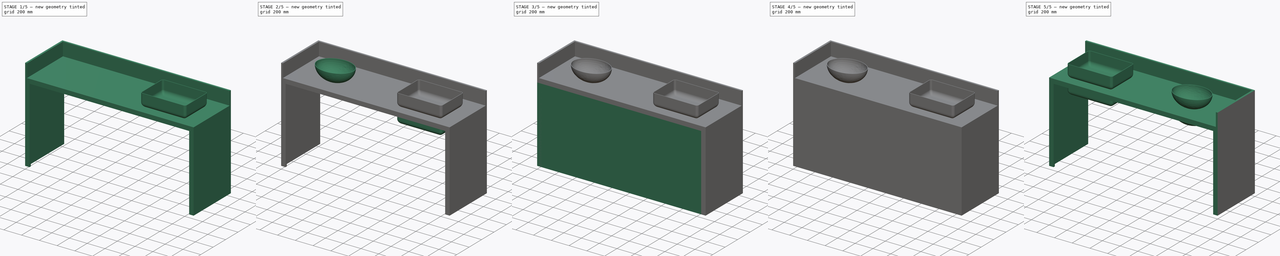
[diagram: build sequence overview — one tinted view per stage of 5, left to right]
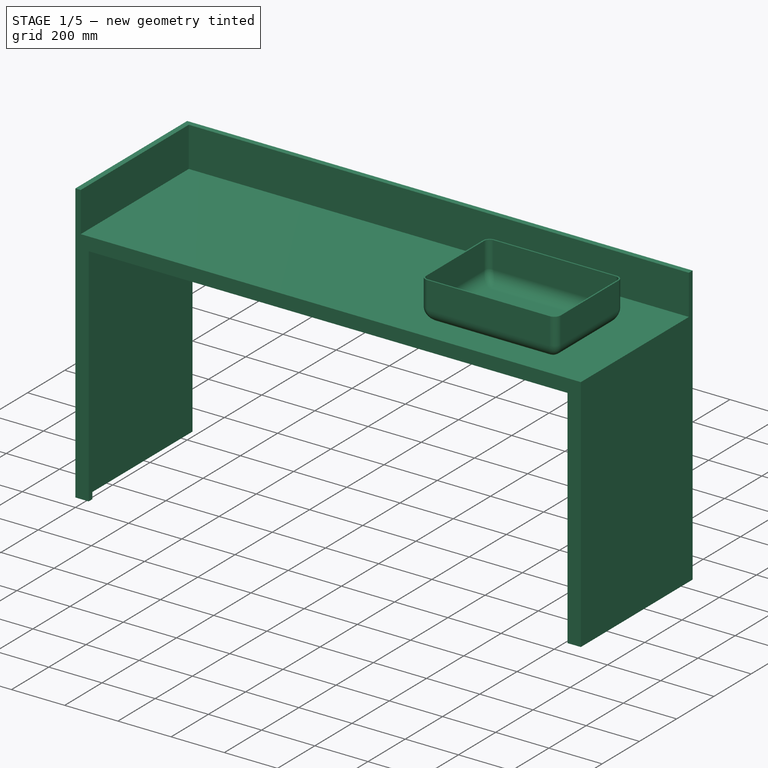
[diagram: stage 1 of 5 — iso view after this stage's code; geometry added in this stage tinted green]
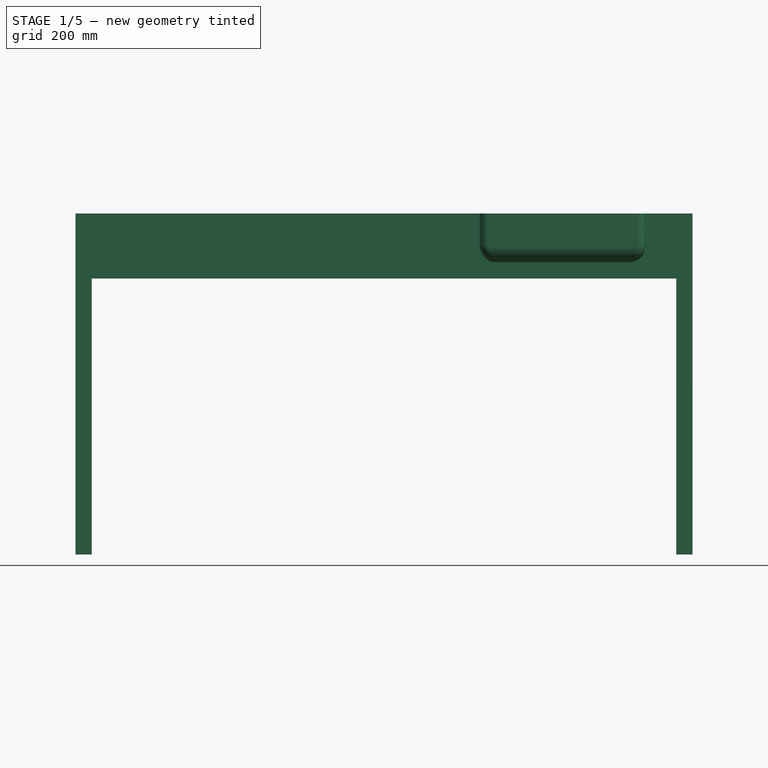
[diagram: stage 1 of 5 — front view after this stage's code; geometry added in this stage tinted green]
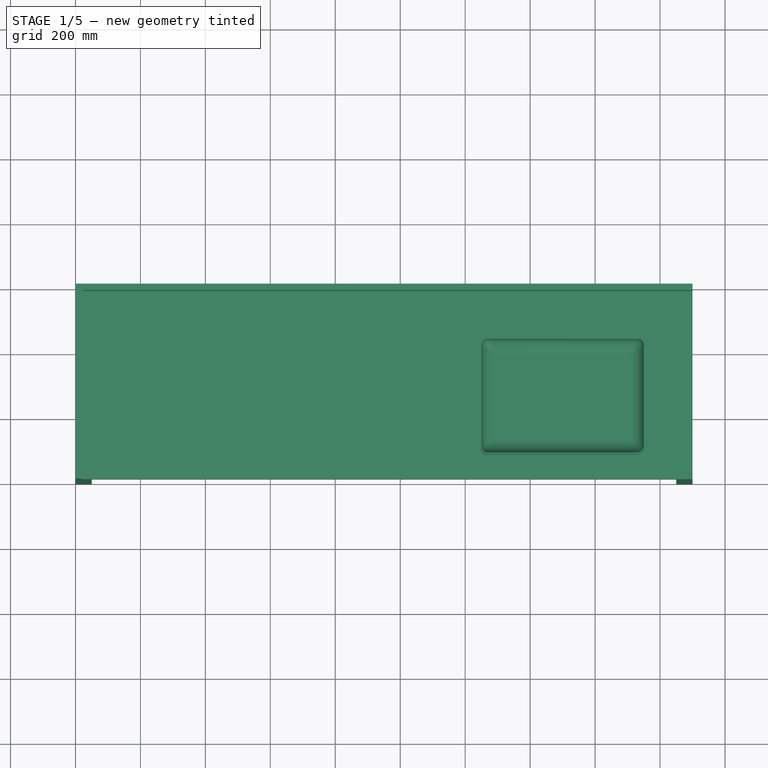
[diagram: stage 1 of 5 — top view after this stage's code; geometry added in this stage tinted green]
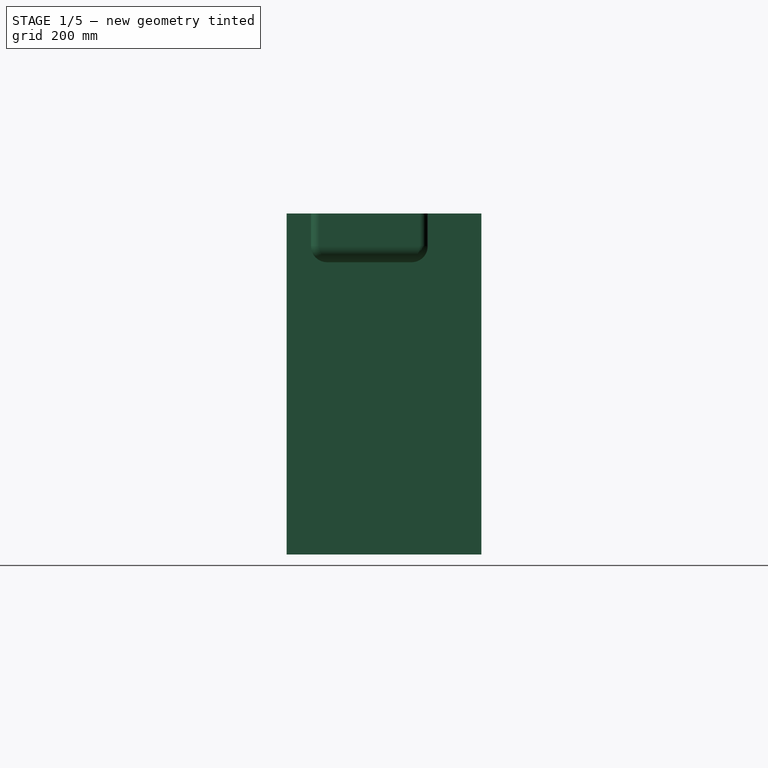
[diagram: stage 1 of 5 — right view after this stage's code; geometry added in this stage tinted green]
FCSTD DOCUMENT  (FreeCAD 0.21R33668 +26 (Git))
Label: MODELO0S MARMORARIA
License: All rights reserved
LicenseURL: https://en.wikipedia.org/wiki/All_rights_reserved
objects: Part::Extrusion×33, Part::MultiFuse×30, Part::FeaturePython×28, Sketcher::SketchObject×15, Part::Cut×15, Part::Mirroring×14, Part::Part2DObjectPython×8, App::DocumentObjectGroup×7, App::FeaturePython×4, Part::Ellipsoid×2, Spreadsheet::Sheet×1, PartDesign::Pad×1, PartDesign::Fillet×1, PartDesign::Thickness×1, PartDesign::Body×1
note: 140 computed .brp shape members not serialized (recipe doc carries the construction recipe); baked Part::Feature solids carry a one-line shape summary decoded from their .brp

FEATURE [Spreadsheet::Sheet] Spreadsheet  label="Tabela"
  cells = A1='BANCADA; A2='COMPRIMENTO; B2(comprimento)==190 cm; A3='LARGURA; B3(largura)==60 cm; A4='ALTURA; B4(altura)==90 cm; A5='SAIA; B5(saia)==5 cm; A6='RODA MÃO; B6(rodamao)==15 cm; A7='ESPESSURA PEDRA; B7(espessura)==2 cm; A8='numCubas; B8(numcubas)=1; A9='Dientancia entre eixo de cubas; B9(entreeixos)==66.666 cm; A11='CUBA ESCUPIDA 1; A12='COMPRIMENTO; B12(comprimentocuba)==40 cm; A13='LARGURA; B13(larguracuba)==30 cm; A14='FUNDO LARGURA; B14(fundo)==10 cm; A15='PROFUNDIDADE; B15(profundidade)==10 cm; A16='AFASTAMENTO LATERAL; B16(afastamentolateral)==26.666 cm; A17='AFASTAMENTO FRONTAL; B17(afastamentofrontal)==8 cm; A19='CUBA REDONDA 1; A20='COMPRIMENTO; B20(comprimentocuba3)==40 cm; A21='LARGURA; B21(larguracuba3)==30 cm; A22='PROFUNDIDADE; B22(profundidade3)==15 cm; A23='ESPESSURACUBA; B23(espessuracuba3)==5 mm; A24='AFASTAMENTO LATERAL; B24(afastamentolateral3)==25 cm; A25='AFASTAMENTO FRONTAL; B25(afastamentofrontal3)==8 cm; A27='CUBA RETANGULAR; A28='COMPRIMENTO; B28(comprimentocuba4)==50 cm; A29='LARGURA; B29(larguracuba4)==35 cm; A30='PROFUNDIDADE; B30(profundidade4)==15 cm; A31='ESPESSURA CUBA; B31(espessuracuba4)==5 mm; A32='AFASTAMENTO LATERAL; B32(afastamentolateral4)==125 cm; A33='AFASTAMENTO FRONTAL; B33(afastamentofrontal4)==8 cm; A34='RAIO DOS CANTOS; B34(raiocantos4)==2 cm
FEATURE [Sketcher::SketchObject] Sketch  label="Pedra base"
  FullyConstrained = true
  Placement = pos=(0,0,0) rot=(1,0,0;1.5708rad)
  expr: Constraints[10] = <<Tabela>>.altura
  expr: Constraints[9] = <<Tabela>>.comprimento
  sketch-geometry (4):
    g0: LineSegment StartX=0 StartY=0 StartZ=0 EndX=1900 EndY=0 EndZ=0
    g1: LineSegment StartX=1900 StartY=0 StartZ=0 EndX=1900 EndY=900 EndZ=0
    g2: LineSegment StartX=1900 StartY=900 StartZ=0 EndX=0 EndY=900 EndZ=0
    g3: LineSegment StartX=0 StartY=900 StartZ=0 EndX=0 EndY=0 EndZ=0
  constraints (11):
    c: Coincident(g0,g1)
    c: Coincident(g1,g2)
    c: Coincident(g2,g3)
    c: Coincident(g3,g0)
    c: Horizontal(g0)
    c: Horizontal(g2)
    c: Vertical(g1)
    c: Vertical(g3)
    c: Coincident(g0,g-1)
    c: DistanceX(g0,g0) = 1900
    c: DistanceY(g3,g3) = 900
FEATURE [Part::Extrusion] Extrude  label="Base"
  Base = -> Sketch
  Dir = (0,-1,2e-16)
  DirMode = 2
  FaceMakerClass = Part::FaceMakerBullseye
  LengthFwd = 0
  LengthRev = 600
  Solid = true
  Symmetric = false
  expr: LengthRev = <<Tabela>>.largura
FEATURE [Sketcher::SketchObject] Sketch004
  FullyConstrained = true
  Placement = pos=(0,0,0) rot=(1,0,0;1.5708rad)
  expr: Constraints[10] = <<Tabela>>.rodamao
  expr: Constraints[9] = <<Tabela>>.comprimento
  sketch-geometry (4):
    g0: LineSegment StartX=0 StartY=0 StartZ=0 EndX=1900 EndY=0 EndZ=0
    g1: LineSegment StartX=1900 StartY=0 StartZ=0 EndX=1900 EndY=150 EndZ=0
    g2: LineSegment StartX=1900 StartY=150 StartZ=0 EndX=0 EndY=150 EndZ=0
    g3: LineSegment StartX=0 StartY=150 StartZ=0 EndX=0 EndY=0 EndZ=0
  constraints (11):
    c: Coincident(g0,g1)
    c: Coincident(g1,g2)
    c: Coincident(g2,g3)
    c: Coincident(g3,g0)
    c: Horizontal(g0)
    c: Horizontal(g2)
    c: Vertical(g1)
    c: Vertical(g3)
    c: Coincident(g0,g-1)
    c: DistanceX(g2,g2) = 1900
    c: DistanceY(g1,g1) = 150
FEATURE [Part::Extrusion] Extrude004  label="Roda mão "
  Base = -> Sketch004
  Dir = (0,-1,2e-16)
  DirMode = 2
  FaceMakerClass = Part::FaceMakerBullseye
  LengthFwd = 20
  LengthRev = 0
  Placement = pos=(0,600,900) rot=(0,0,1;0rad)
  Solid = true
  Symmetric = false
  expr: .Placement.Base.y = <<Tabela>>.largura
  expr: .Placement.Base.z = <<Tabela>>.altura
  expr: LengthFwd = <<Tabela>>.espessura
FEATURE [Sketcher::SketchObject] Sketch005
  FullyConstrained = true
  Placement = pos=(0,0,0) rot=(1,0,0;1.5708rad)
  expr: Constraints[10] = <<Tabela>>.espessura
  expr: Constraints[9] = <<Tabela>>.rodamao
  sketch-geometry (4):
    g0: LineSegment StartX=0 StartY=0 StartZ=0 EndX=20 EndY=0 EndZ=0
    g1: LineSegment StartX=20 StartY=0 StartZ=0 EndX=20 EndY=150 EndZ=0
    g2: LineSegment StartX=20 StartY=150 StartZ=0 EndX=0 EndY=150 EndZ=0
    g3: LineSegment StartX=0 StartY=150 StartZ=0 EndX=0 EndY=0 EndZ=0
  constraints (11):
    c: Coincident(g0,g1)
    c: Coincident(g1,g2)
    c: Coincident(g2,g3)
    c: Coincident(g3,g0)
    c: Horizontal(g0)
    c: Horizontal(g2)
    c: Vertical(g1)
    c: Vertical(g3)
    c: Coincident(g0,g-1)
    c: DistanceY(g3,g3) = 150
    c: DistanceX(g2,g2) = 20
FEATURE [Part::Extrusion] Extrude005  label="Roda mão 001"
  Base = -> Sketch005
  Dir = (0,-1,2e-16)
  DirMode = 2
  FaceMakerClass = Part::FaceMakerBullseye
  LengthFwd = 0
  LengthRev = 600
  Placement = pos=(0,0,900) rot=(0,0,1;0rad)
  Solid = true
  Symmetric = false
  expr: .Placement.Base.z = <<Tabela>>.altura
  expr: LengthRev = <<Tabela>>.largura
FEATURE [Part::Extrusion] Extrude029  label="Base002"
  Base = -> Sketch
  Dir = (0,-1,2e-16)
  DirMode = 2
  FaceMakerClass = Part::FaceMakerBullseye
  LengthFwd = 0
  LengthRev = 600
  Solid = true
  Symmetric = false
  expr: LengthRev = <<Tabela>>.largura
FEATURE [Part::Extrusion] Extrude030  label="Roda mão 003"
  Base = -> Sketch004
  Dir = (0,-1,2e-16)
  DirMode = 2
  FaceMakerClass = Part::FaceMakerBullseye
  LengthFwd = 20
  LengthRev = 0
  Placement = pos=(0,600,900) rot=(0,0,1;0rad)
  Solid = true
  Symmetric = false
  expr: .Placement.Base.y = <<Tabela>>.largura
  expr: .Placement.Base.z = <<Tabela>>.altura
  expr: LengthFwd = <<Tabela>>.espessura
FEATURE [Sketcher::SketchObject] Sketch020
  FullyConstrained = true
  expr: Constraints[23] = <<Tabela>>.raiocantos4 + <<Tabela>>.espessuracuba4
  expr: Constraints[5] = <<Tabela>>.comprimentocuba4 + 2 * <<Tabela>>.espessuracuba4
  expr: Constraints[6] = <<Tabela>>.larguracuba4 + 2 * <<Tabela>>.espessuracuba4
  sketch-geometry (12):
    g0: LineSegment StartX=25 StartY=0 StartZ=0 EndX=485 EndY=0 EndZ=0
    g1: LineSegment StartX=510 StartY=25 StartZ=0 EndX=510 EndY=335 EndZ=0
    g2: LineSegment StartX=485 StartY=360 StartZ=0 EndX=25 EndY=360 EndZ=0
    g3: LineSegment StartX=0 StartY=335 StartZ=0 EndX=0 EndY=25 EndZ=0
    g4: ArcOfCircle CenterX=25 CenterY=335 CenterZ=0 NormalX=0 NormalY=0 NormalZ=1 AngleXU=0 Radius=25 StartAngle=1.5708 EndAngle=3.14159
    g5: GeomPoint X=0 Y=360 Z=0
    g6: ArcOfCircle CenterX=25 CenterY=25 CenterZ=0 NormalX=0 NormalY=0 NormalZ=1 AngleXU=0 Radius=25 StartAngle=3.14159 EndAngle=4.71239
    g7: GeomPoint X=0 Y=0 Z=0
    g8: ArcOfCircle CenterX=485 CenterY=25 CenterZ=0 NormalX=0 NormalY=0 NormalZ=1 AngleXU=0 Radius=25 StartAngle=4.71239 EndAngle=6.28319
    g9: GeomPoint X=510 Y=0 Z=0
    g10: ArcOfCircle CenterX=485 CenterY=335 CenterZ=0 NormalX=0 NormalY=0 NormalZ=1 AngleXU=0 Radius=25 StartAngle=0 EndAngle=1.5708
    g11: GeomPoint X=510 Y=360 Z=0
  constraints (27):
    c: Horizontal(g0)
    c: Horizontal(g2)
    c: Vertical(g1)
    c: Vertical(g3)
    c: Coincident(g7,g-1)
    c: DistanceX(g5,g11) = 510
    c: DistanceY(g9,g11) = 360
    c: PointOnObject(g5,g2)
    c: PointOnObject(g5,g3)
    c: Tangent(g2,g4) = -1.5708
    c: Tangent(g3,g4) = -1.5708
    c: PointOnObject(g7,g3)
    c: PointOnObject(g7,g0)
    c: Tangent(g3,g6) = -1.5708
    c: Tangent(g0,g6) = -1.5708
    c: PointOnObject(g9,g0)
    c: PointOnObject(g9,g1)
    c: Tangent(g0,g8) = -1.5708
    c: Tangent(g1,g8) = -1.5708
    c: PointOnObject(g11,g1)
    c: PointOnObject(g11,g2)
    c: Tangent(g1,g10) = -1.5708
    c: Tangent(g2,g10) = -1.5708
    c: Radius(g4) = 25
    c: Equal(g8,g6)
    c: Equal(g6,g10)
    c: Equal(g4,g6)
FEATURE [PartDesign::Pad] Pad
  Direction = (0,0,-1)
  Length = 150
  Length2 = 10
  Profile = -> Sketch020
  ReferenceAxis = -> Sketch020 [N_Axis]
  Type = 0
  UseCustomVector = true
  expr: Length = <<Tabela>>.profundidade4
FEATURE [PartDesign::Fillet] Fillet
  Base = -> Pad [Face10]
  BaseFeature = -> Pad
  Radius = 50
  SupportTransform = false
  UseAllEdges = false
FEATURE [PartDesign::Thickness] Thickness
  Base = -> Fillet [Face4]
  BaseFeature = -> Fillet
  Intersection = false
  Join = 0
  Mode = 0
  Reversed = true
  SupportTransform = false
  Value = 5
  expr: Value = <<Tabela>>.espessuracuba4
FEATURE [Part::MultiFuse] Fusion036  label="Pedras005"
  Refine = true
  Shapes = -> [Extrude,Extrude004,Extrude005]
FEATURE [Part::Extrusion] Extrude042  label="Base 006"
  Base = -> Sketch002
  Dir = (0,-1,2e-16)
  DirMode = 2
  FaceMakerClass = Part::FaceMakerBullseye
  LengthFwd = 0
  LengthRev = 580
  Placement = pos=(0,20,0) rot=(0,0,1;0rad)
  Solid = true
  Symmetric = false
  expr: .Placement.Base.y = <<Tabela>>.espessura
  expr: LengthRev = <<Tabela>>.largura - <<Tabela>>.espessura
FEATURE [Part::Extrusion] Extrude043  label="Saia006"
  Base = -> Sketch001
  Dir = (0,-1,2e-16)
  DirMode = 2
  FaceMakerClass = Part::FaceMakerBullseye
  LengthFwd = 0
  LengthRev = 20
  Solid = true
  Symmetric = false
  expr: LengthRev = <<Tabela>>.espessura
FEATURE [Part::MultiFuse] Fusion037  label="corte001"
  Shapes = -> [Extrude042,Extrude043]
FEATURE [Part::Cut] Cut023
  Base = -> Fusion036
  Tool = -> Fusion037
FEATURE [Part::FeaturePython] Clone  label="Cuba009"  # Draft clone (typed FeaturePython)
  AttacherType = Attacher::AttachEngine3D
  Fuse = false
  Objects = -> [Body]
  Placement = pos=(1245,75,1050) rot=(0,0,1;0rad)
  Scale = (1,1,1)
  expr: .Placement.Base.x = <<Tabela>>.afastamentolateral4 - <<Tabela>>.espessuracuba4
  expr: .Placement.Base.y = <<Tabela>>.afastamentofrontal4 - <<Tabela>>.espessuracuba4
  expr: .Placement.Base.z = <<Tabela>>.altura + <<Tabela>>.profundidade4
FEATURE [Part::FeaturePython] Array014  # Draft array (typed FeaturePython)
  AlwaysSyncPlacement = false
  Angle = 360
  ArrayType = 0
  Axis = (0,0,1)
  Base = -> Clone
  Center = (0,0,0)
  Count = 1
  ExpandArray = false
  Fuse = false
  IntervalAxis = (0,0,0)
  IntervalX = (666.66,0,0)
  IntervalY = (0,100,0)
  IntervalZ = (0,0,100)
  NumberCircles = 3
  NumberPolar = 5
  NumberX = 1
  NumberY = 1
  NumberZ = 1
  PlacementList = 1 placements: [(1245,75,1050)]
  RadialDistance = 50
  ScaleList = (1) [(1,1,1)]
  Symmetry = 1
  TangentialDistance = 25
  expr: .IntervalX.x = <<Tabela>>.entreeixos
  expr: NumberX = <<Tabela>>.numcubas
FEATURE [Part::MultiFuse] Fusion038  label="Pia cuba sobrepor retangular 1 pé fechado"
  Shapes = -> [Cut023,Array014]
FEATURE [Part::FeaturePython] Clone001  label="Cuba010"  # Draft clone (typed FeaturePython)
  AttacherType = Attacher::AttachEngine3D
  Fuse = false
  Objects = -> [Body]
  Placement = pos=(1245,75,1050) rot=(0,0,1;0rad)
  Scale = (1,1,1)
  expr: .Placement.Base.x = <<Tabela>>.afastamentolateral4 - <<Tabela>>.espessuracuba4
  expr: .Placement.Base.y = <<Tabela>>.afastamentofrontal4 - <<Tabela>>.espessuracuba4
  expr: .Placement.Base.z = <<Tabela>>.altura + <<Tabela>>.profundidade4
FEATURE [Part::MultiFuse] Fusion039  label="Pedra003"
  Shapes = -> [Extrude029,Extrude030]
FEATURE [Part::Extrusion] Extrude044
  Base = -> Sketch014
  Dir = (0,-1,2e-16)
  DirMode = 2
  FaceMakerClass = Part::FaceMakerBullseye
  LengthFwd = 0
  LengthRev = 20
  Placement = pos=(50,0,0) rot=(0,0,1;0rad)
  Solid = true
  Symmetric = false
  expr: .Placement.Base.x = <<Tabela>>.saia
  expr: LengthRev = <<Tabela>>.espessura
FEATURE [Part::Extrusion] Extrude045
  Base = -> Sketch015
  Dir = (0,-1,2e-16)
  DirMode = 2
  FaceMakerClass = Part::FaceMakerBullseye
  LengthFwd = 0
  LengthRev = 580
  Placement = pos=(20,20,0) rot=(0,0,1;0rad)
  Solid = true
  Symmetric = false
  expr: .Placement.Base.x = <<Tabela>>.espessura
  expr: .Placement.Base.y = <<Tabela>>.espessura
  expr: LengthRev = <<Tabela>>.largura - <<Tabela>>.espessura
FEATURE [Part::MultiFuse] Fusion040  label="Corte002"
  Shapes = -> [Extrude045,Extrude044]
FEATURE [Part::Cut] Cut024
  Base = -> Fusion039
  Tool = -> Fusion040
FEATURE [Part::FeaturePython] Array015  # Draft array (typed FeaturePython)
  AlwaysSyncPlacement = false
  Angle = 360
  ArrayType = 0
  Axis = (0,0,1)
  Base = -> Clone001
  Center = (0,0,0)
  Count = 1
  ExpandArray = false
  Fuse = false
  IntervalAxis = (0,0,0)
  IntervalX = (666.66,0,0)
  IntervalY = (0,100,0)
  IntervalZ = (0,0,100)
  NumberCircles = 3
  NumberPolar = 5
  NumberX = 1
  NumberY = 1
  NumberZ = 1
  PlacementList = 1 placements: [(1245,75,1050)]
  RadialDistance = 50
  ScaleList = (1) [(1,1,1)]
  Symmetry = 1
  TangentialDistance = 25
  expr: .IntervalX.x = <<Tabela>>.entreeixos
  expr: NumberX = <<Tabela>>.numcubas
FEATURE [Part::MultiFuse] Fusion041  label="Pia cuba sobrepor retangular 2 pé fechado"
  Shapes = -> [Cut024,Array015]
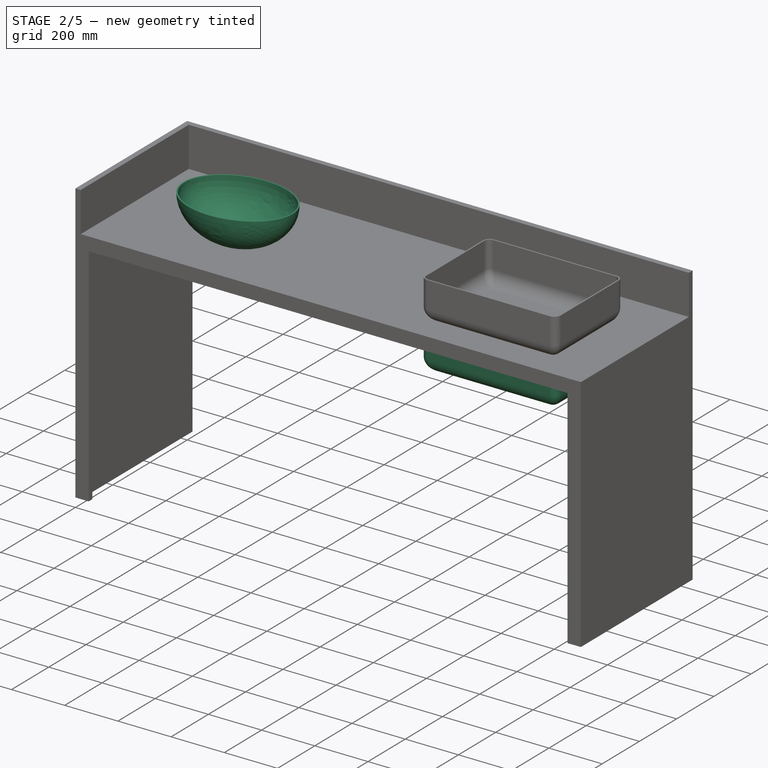
[diagram: stage 2 of 5 — iso view after this stage's code; geometry added in this stage tinted green]
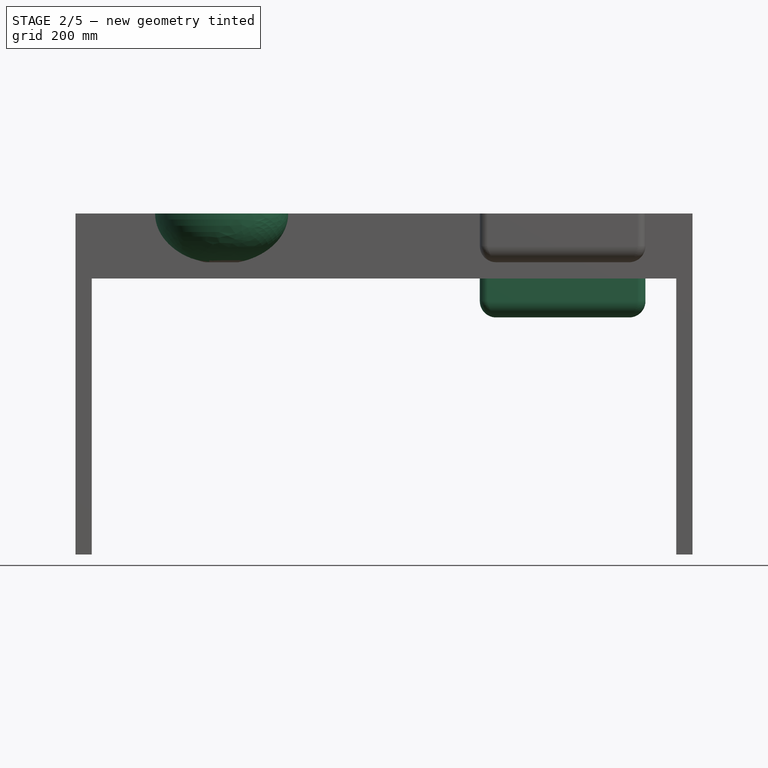
[diagram: stage 2 of 5 — front view after this stage's code; geometry added in this stage tinted green]
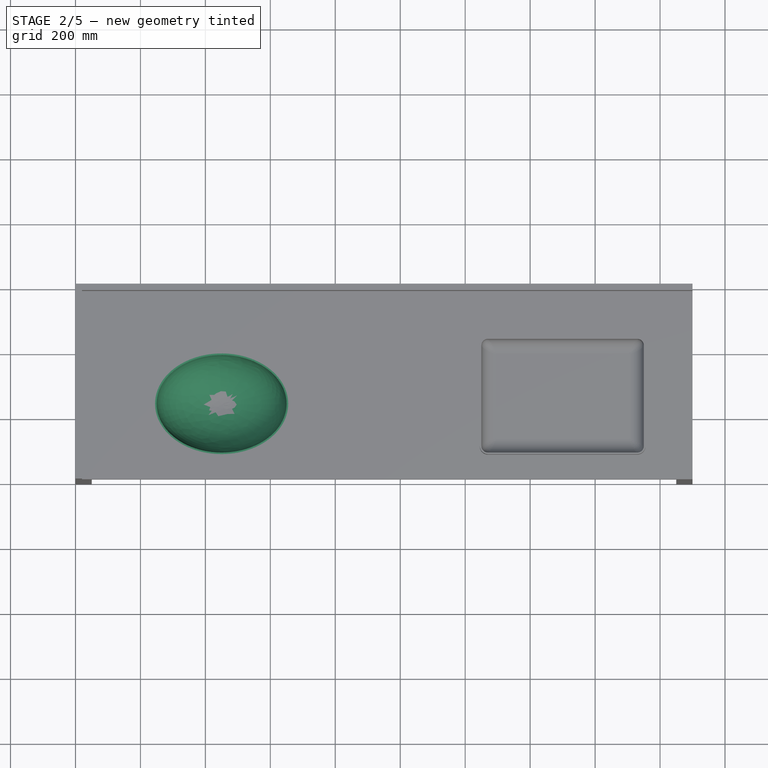
[diagram: stage 2 of 5 — top view after this stage's code; geometry added in this stage tinted green]
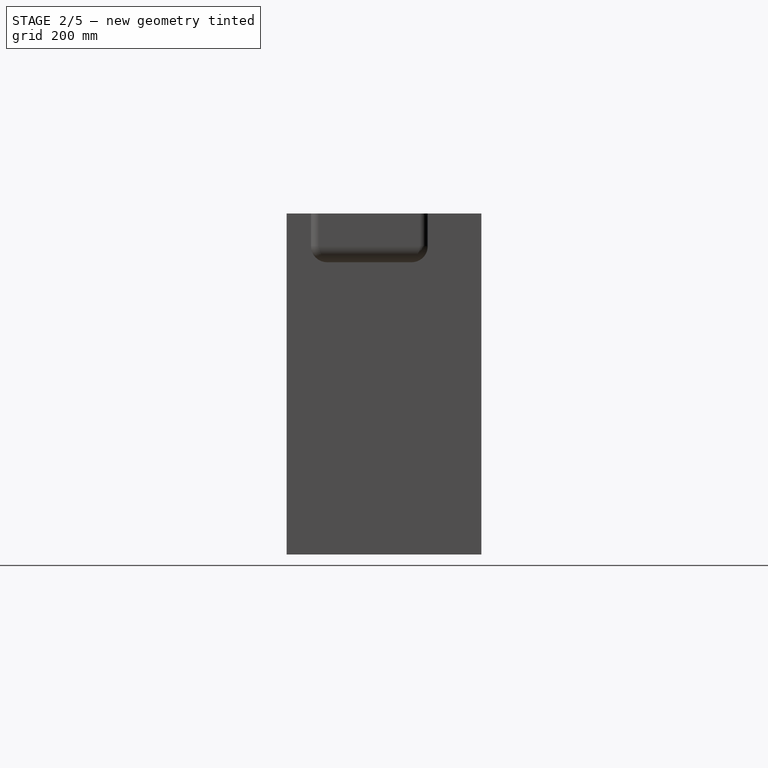
[diagram: stage 2 of 5 — right view after this stage's code; geometry added in this stage tinted green]
FEATURE [Part::Extrusion] Extrude033
  Base = -> Sketch015
  Dir = (0,-1,2e-16)
  DirMode = 2
  FaceMakerClass = Part::FaceMakerBullseye
  LengthFwd = 0
  LengthRev = 580
  Placement = pos=(20,20,0) rot=(0,0,1;0rad)
  Solid = true
  Symmetric = false
  expr: .Placement.Base.x = <<Tabela>>.espessura
  expr: .Placement.Base.y = <<Tabela>>.espessura
  expr: LengthRev = <<Tabela>>.largura - <<Tabela>>.espessura
FEATURE [Part::Extrusion] Extrude034
  Base = -> Sketch014
  Dir = (0,-1,2e-16)
  DirMode = 2
  FaceMakerClass = Part::FaceMakerBullseye
  LengthFwd = 0
  LengthRev = 20
  Placement = pos=(50,0,0) rot=(0,0,1;0rad)
  Solid = true
  Symmetric = false
  expr: .Placement.Base.x = <<Tabela>>.saia
  expr: LengthRev = <<Tabela>>.espessura
FEATURE [Part::MultiFuse] Fusion027  label="Pedra001"
  Shapes = -> [Extrude029,Extrude030]
FEATURE [Part::Cut] Cut018  label="Cuba005"
  Base = -> Ellipsoid001
  Placement = pos=(450,230,1050) rot=(0,0,1;0rad)
  Tool = -> Ellipsoid
  expr: .Placement.Base.x = <<Tabela>>.afastamentolateral3 + <<Tabela>>.comprimentocuba3 / 2
  expr: .Placement.Base.y = <<Tabela>>.afastamentofrontal3 + <<Tabela>>.larguracuba3 / 2
  expr: .Placement.Base.z = <<Tabela>>.altura + <<Tabela>>.profundidade3
FEATURE [Part::MultiFuse] Fusion028  label="corte"
  Shapes = -> [Extrude034,Extrude033]
FEATURE [Part::Cut] Cut019
  Base = -> Fusion027
  Tool = -> Fusion028
FEATURE [Part::FeaturePython] Array009  # Draft array (typed FeaturePython)
  AlwaysSyncPlacement = false
  Angle = 360
  ArrayType = 0
  Axis = (0,0,1)
  Base = -> Cut018
  Center = (0,0,0)
  Count = 1
  ExpandArray = false
  Fuse = false
  IntervalAxis = (0,0,0)
  IntervalX = (666.66,0,0)
  IntervalY = (0,100,0)
  IntervalZ = (0,0,100)
  NumberCircles = 3
  NumberPolar = 5
  NumberX = 1
  NumberY = 1
  NumberZ = 1
  PlacementList = 1 placements: [(450,230,1050)]
  RadialDistance = 50
  ScaleList = (1) [(1,1,1)]
  Symmetry = 1
  TangentialDistance = 25
  expr: .IntervalX.x = <<Tabela>>.entreeixos
  expr: NumberX = <<Tabela>>.numcubas
FEATURE [Part::Extrusion] Extrude035  label="Saia005"
  Base = -> Sketch001
  Dir = (0,-1,2e-16)
  DirMode = 2
  FaceMakerClass = Part::FaceMakerBullseye
  LengthFwd = 0
  LengthRev = 20
  Solid = true
  Symmetric = false
  expr: LengthRev = <<Tabela>>.espessura
FEATURE [Part::Extrusion] Extrude036  label="Base 005"
  Base = -> Sketch002
  Dir = (0,-1,2e-16)
  DirMode = 2
  FaceMakerClass = Part::FaceMakerBullseye
  LengthFwd = 0
  LengthRev = 580
  Placement = pos=(0,20,0) rot=(0,0,1;0rad)
  Solid = true
  Symmetric = false
  expr: .Placement.Base.y = <<Tabela>>.espessura
  expr: LengthRev = <<Tabela>>.largura - <<Tabela>>.espessura
FEATURE [Sketcher::SketchObject] Sketch016
  FullyConstrained = true
  expr: Constraints[23] = <<Tabela>>.raiocantos4
  expr: Constraints[5] = <<Tabela>>.comprimentocuba4
  expr: Constraints[6] = <<Tabela>>.larguracuba4
  sketch-geometry (12):
    g0: LineSegment StartX=20 StartY=0 StartZ=0 EndX=480 EndY=0 EndZ=0
    g1: LineSegment StartX=500 StartY=20 StartZ=0 EndX=500 EndY=330 EndZ=0
    g2: LineSegment StartX=480 StartY=350 StartZ=0 EndX=20 EndY=350 EndZ=0
    g3: LineSegment StartX=0 StartY=330 StartZ=0 EndX=0 EndY=20 EndZ=0
    g4: ArcOfCircle CenterX=20 CenterY=330 CenterZ=0 NormalX=0 NormalY=0 NormalZ=1 AngleXU=0 Radius=20 StartAngle=1.5708 EndAngle=3.14159
    g5: GeomPoint X=0 Y=350 Z=0
    g6: ArcOfCircle CenterX=20 CenterY=20 CenterZ=0 NormalX=0 NormalY=0 NormalZ=1 AngleXU=0 Radius=20 StartAngle=3.14159 EndAngle=4.71239
    g7: GeomPoint X=0 Y=0 Z=0
    g8: ArcOfCircle CenterX=480 CenterY=20 CenterZ=0 NormalX=0 NormalY=0 NormalZ=1 AngleXU=0 Radius=20 StartAngle=4.71239 EndAngle=6.28319
    g9: GeomPoint X=500 Y=0 Z=0
    g10: ArcOfCircle CenterX=480 CenterY=330 CenterZ=0 NormalX=0 NormalY=0 NormalZ=1 AngleXU=0 Radius=20 StartAngle=0 EndAngle=1.5708
    g11: GeomPoint X=500 Y=350 Z=0
  constraints (27):
    c: Horizontal(g0)
    c: Horizontal(g2)
    c: Vertical(g1)
    c: Vertical(g3)
    c: Coincident(g7,g-1)
    c: DistanceX(g5,g11) = 500
    c: DistanceY(g9,g11) = 350
    c: PointOnObject(g5,g2)
    c: PointOnObject(g5,g3)
    c: Tangent(g2,g4) = -1.5708
    c: Tangent(g3,g4) = -1.5708
    c: PointOnObject(g7,g3)
    c: PointOnObject(g7,g0)
    c: Tangent(g3,g6) = -1.5708
    c: Tangent(g0,g6) = -1.5708
    c: PointOnObject(g9,g0)
    c: PointOnObject(g9,g1)
    c: Tangent(g0,g8) = -1.5708
    c: Tangent(g1,g8) = -1.5708
    c: PointOnObject(g11,g1)
    c: PointOnObject(g11,g2)
    c: Tangent(g1,g10) = -1.5708
    c: Tangent(g2,g10) = -1.5708
    c: Radius(g4) = 20
    c: Equal(g4,g6)
    c: Equal(g8,g6)
    c: Equal(g6,g10)
FEATURE [Part::MultiFuse] Fusion030  label="Pedras004"
  Refine = true
  Shapes = -> [Extrude,Extrude004,Extrude005]
FEATURE [Part::Extrusion] Extrude037
  Base = -> Sketch016
  Dir = (0,0,1)
  DirMode = 2
  FaceMakerClass = Part::FaceMakerBullseye
  LengthFwd = 20
  LengthRev = 0
  Placement = pos=(1250,80,880) rot=(0,0,1;0rad)
  Solid = true
  Symmetric = false
  expr: .Placement.Base.x = <<Tabela>>.afastamentolateral4
  expr: .Placement.Base.y = <<Tabela>>.afastamentofrontal4
  expr: .Placement.Base.z = <<Tabela>>.altura - <<Tabela>>.espessura
  expr: LengthFwd = <<Tabela>>.espessura
FEATURE [Part::FeaturePython] Array010  # Draft array (typed FeaturePython)
  AlwaysSyncPlacement = false
  Angle = 360
  ArrayType = 0
  Axis = (0,0,1)
  Base = -> Extrude037
  Center = (0,0,0)
  Count = 1
  ExpandArray = false
  Fuse = false
  IntervalAxis = (0,0,0)
  IntervalX = (666.66,0,0)
  IntervalY = (0,100,0)
  IntervalZ = (0,0,100)
  NumberCircles = 3
  NumberPolar = 5
  NumberX = 1
  NumberY = 1
  NumberZ = 1
  PlacementList = 1 placements: [(1250,80,880)]
  RadialDistance = 50
  ScaleList = (1) [(1,1,1)]
  Symmetry = 1
  TangentialDistance = 25
  expr: .IntervalX.x = <<Tabela>>.entreeixos
  expr: NumberX = <<Tabela>>.numcubas
FEATURE [Part::MultiFuse] Fusion031  label="Corte"
  Shapes = -> [Extrude035,Extrude036,Array010]
FEATURE [Part::Cut] Cut020
  Base = -> Fusion030
  Tool = -> Fusion031
FEATURE [Part::Extrusion] Extrude040
  Base = -> Sketch015
  Dir = (0,-1,2e-16)
  DirMode = 2
  FaceMakerClass = Part::FaceMakerBullseye
  LengthFwd = 0
  LengthRev = 580
  Placement = pos=(20,20,0) rot=(0,0,1;0rad)
  Solid = true
  Symmetric = false
  expr: .Placement.Base.x = <<Tabela>>.espessura
  expr: .Placement.Base.y = <<Tabela>>.espessura
  expr: LengthRev = <<Tabela>>.largura - <<Tabela>>.espessura
FEATURE [Part::Extrusion] Extrude041
  Base = -> Sketch014
  Dir = (0,-1,2e-16)
  DirMode = 2
  FaceMakerClass = Part::FaceMakerBullseye
  LengthFwd = 0
  LengthRev = 20
  Placement = pos=(50,0,0) rot=(0,0,1;0rad)
  Solid = true
  Symmetric = false
  expr: .Placement.Base.x = <<Tabela>>.saia
  expr: LengthRev = <<Tabela>>.espessura
FEATURE [Part::FeaturePython] Array012  # Draft array (typed FeaturePython)
  AlwaysSyncPlacement = false
  Angle = 360
  ArrayType = 0
  Axis = (0,0,1)
  Base = -> Extrude037
  Center = (0,0,0)
  Count = 1
  ExpandArray = false
  Fuse = false
  IntervalAxis = (0,0,0)
  IntervalX = (666.66,0,0)
  IntervalY = (0,100,0)
  IntervalZ = (0,0,100)
  NumberCircles = 3
  NumberPolar = 5
  NumberX = 1
  NumberY = 1
  NumberZ = 1
  PlacementList = 1 placements: [(1250,80,880)]
  RadialDistance = 50
  ScaleList = (1) [(1,1,1)]
  Symmetry = 1
  TangentialDistance = 25
  expr: .IntervalX.x = <<Tabela>>.entreeixos
  expr: NumberX = <<Tabela>>.numcubas
FEATURE [Part::MultiFuse] Fusion033  label="Pedra002"
  Shapes = -> [Extrude029,Extrude030]
FEATURE [Part::MultiFuse] Fusion034  label="Corte001"
  Shapes = -> [Extrude040,Extrude041,Array012]
FEATURE [Part::Cut] Cut022
  Base = -> Fusion033
  Tool = -> Fusion034
FEATURE [PartDesign::Body] Body  label="Cuba008"
  Group = -> [Sketch020,Pad,Fillet,Thickness]
  Origin = -> Origin
  Placement = pos=(1245,75,880) rot=(0,0,1;0rad)
  Tip = -> Thickness
  expr: .Placement.Base.x = <<Tabela>>.afastamentolateral4 - <<Tabela>>.espessuracuba4
  expr: .Placement.Base.y = <<Tabela>>.afastamentofrontal4 - <<Tabela>>.espessuracuba4
  expr: .Placement.Base.z = <<Tabela>>.altura - <<Tabela>>.espessura
FEATURE [Part::FeaturePython] Array011  # Draft array (typed FeaturePython)
  AlwaysSyncPlacement = false
  Angle = 360
  ArrayType = 0
  Axis = (0,0,1)
  Base = -> Body
  Center = (0,0,0)
  Count = 1
  ExpandArray = false
  Fuse = false
  IntervalAxis = (0,0,0)
  IntervalX = (666.66,0,0)
  IntervalY = (0,100,0)
  IntervalZ = (0,0,100)
  NumberCircles = 3
  NumberPolar = 5
  NumberX = 1
  NumberY = 1
  NumberZ = 1
  PlacementList = 1 placements: [(1245,75,880)]
  RadialDistance = 50
  ScaleList = (1) [(1,1,1)]
  Symmetry = 1
  TangentialDistance = 25
  expr: .IntervalX.x = <<Tabela>>.entreeixos
  expr: NumberX = <<Tabela>>.numcubas
FEATURE [Part::MultiFuse] Fusion032  label="Pia cuba embutir retangular 1 pé fechado"
  Shapes = -> [Cut020,Array011]
FEATURE [Part::FeaturePython] Array013  # Draft array (typed FeaturePython)
  AlwaysSyncPlacement = false
  Angle = 360
  ArrayType = 0
  Axis = (0,0,1)
  Base = -> Body
  Center = (0,0,0)
  Count = 1
  ExpandArray = false
  Fuse = false
  IntervalAxis = (0,0,0)
  IntervalX = (666.66,0,0)
  IntervalY = (0,100,0)
  IntervalZ = (0,0,100)
  NumberCircles = 3
  NumberPolar = 5
  NumberX = 1
  NumberY = 1
  NumberZ = 1
  PlacementList = 1 placements: [(1245,75,880)]
  RadialDistance = 50
  ScaleList = (1) [(1,1,1)]
  Symmetry = 1
  TangentialDistance = 25
  expr: .IntervalX.x = <<Tabela>>.entreeixos
  expr: NumberX = <<Tabela>>.numcubas
FEATURE [Part::MultiFuse] Fusion035  label="Pia cuba embutir retangular 2 pé fechado"
  Shapes = -> [Array013,Cut022]
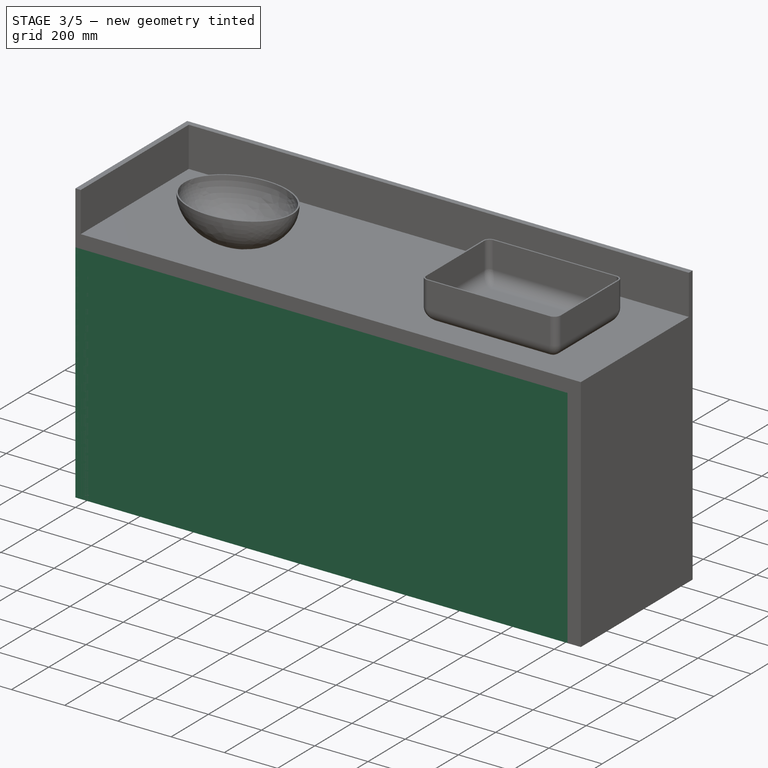
[diagram: stage 3 of 5 — iso view after this stage's code; geometry added in this stage tinted green]
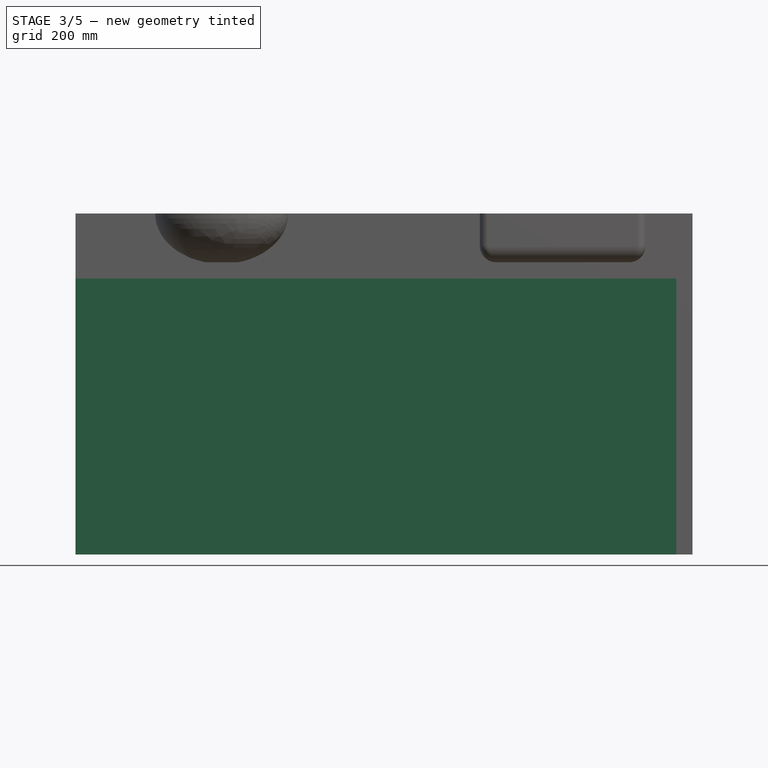
[diagram: stage 3 of 5 — front view after this stage's code; geometry added in this stage tinted green]
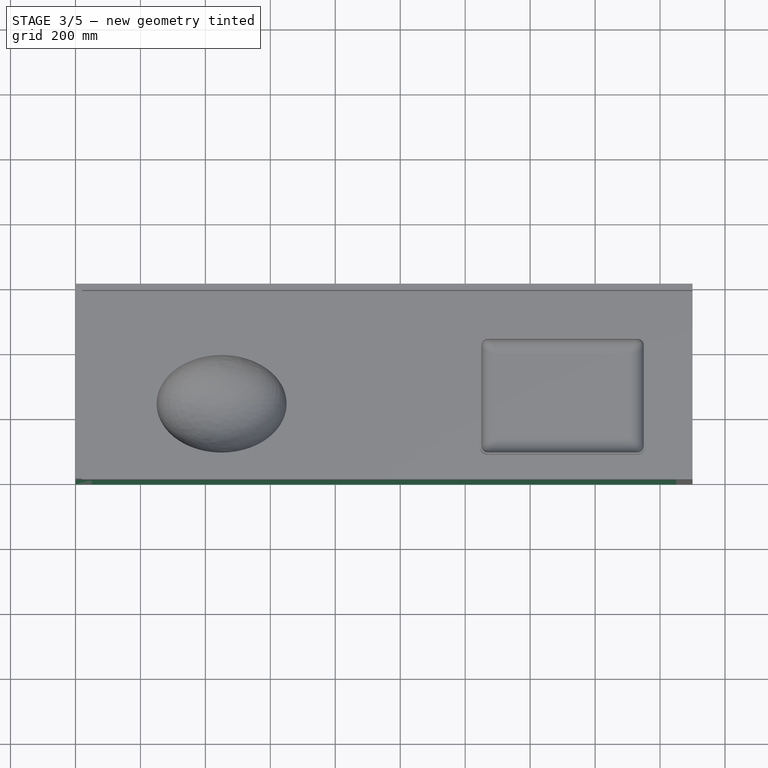
[diagram: stage 3 of 5 — top view after this stage's code; geometry added in this stage tinted green]
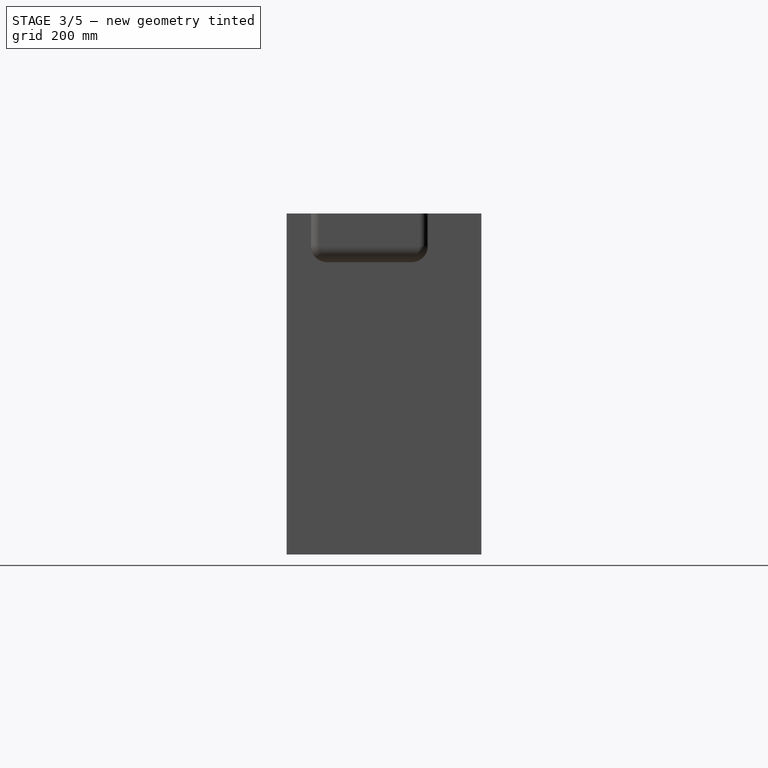
[diagram: stage 3 of 5 — right view after this stage's code; geometry added in this stage tinted green]
FEATURE [Part::Ellipsoid] Ellipsoid  label="Elipsóide"
  Angle1 = -90
  Angle2 = 0
  Angle3 = 360
  AttacherType = Attacher::AttachEngine3D
  Radius1 = 150
  Radius2 = 200
  Radius3 = 150
  expr: Radius1 = <<Tabela>>.profundidade3
  expr: Radius2 = <<Tabela>>.comprimentocuba3 / 2
  expr: Radius3 = <<Tabela>>.larguracuba3 / 2
FEATURE [Part::Ellipsoid] Ellipsoid001  label="Elipsóide001"
  Angle1 = -90
  Angle2 = 0
  Angle3 = 360
  AttacherType = Attacher::AttachEngine3D
  Radius1 = 155
  Radius2 = 205
  Radius3 = 155
  expr: Radius1 = <<Tabela>>.profundidade3 + <<Tabela>>.espessuracuba3
  expr: Radius2 = <<Tabela>>.comprimentocuba3 / 2 + <<Tabela>>.espessuracuba3
  expr: Radius3 = <<Tabela>>.larguracuba3 / 2 + <<Tabela>>.espessuracuba3
FEATURE [Part::Extrusion] Extrude024  label="Saia003"
  Base = -> Sketch001
  Dir = (0,-1,2e-16)
  DirMode = 2
  FaceMakerClass = Part::FaceMakerBullseye
  LengthFwd = 0
  LengthRev = 20
  Solid = true
  Symmetric = false
  expr: LengthRev = <<Tabela>>.espessura
FEATURE [Part::Extrusion] Extrude025  label="Base 003"
  Base = -> Sketch002
  Dir = (0,-1,2e-16)
  DirMode = 2
  FaceMakerClass = Part::FaceMakerBullseye
  LengthFwd = 0
  LengthRev = 580
  Placement = pos=(0,20,0) rot=(0,0,1;0rad)
  Solid = true
  Symmetric = false
  expr: .Placement.Base.y = <<Tabela>>.espessura
  expr: LengthRev = <<Tabela>>.largura - <<Tabela>>.espessura
FEATURE [Sketcher::SketchObject] Sketch013
  FullyConstrained = true
  expr: Constraints[6] = <<Tabela>>.larguracuba3 / 2
  expr: Constraints[7] = <<Tabela>>.comprimentocuba3 / 2
  sketch-geometry (5):
    g0: Ellipse CenterX=0 CenterY=0 CenterZ=0 NormalX=0 NormalY=0 NormalZ=1 MajorRadius=200 MinorRadius=150 AngleXU=-7.98e-14
    g1: LineSegment StartX=200 StartY=-6.9847e-12 StartZ=0 EndX=-200 EndY=6.9847e-12 EndZ=0
    g2: LineSegment StartX=0 StartY=150 StartZ=0 EndX=0 EndY=-150 EndZ=0
    g3: GeomPoint X=132.288 Y=-1.05565e-11 Z=0
    g4: GeomPoint X=-132.288 Y=1.05599e-11 Z=0
  constraints (5):
    c: InternalAlignment(g1-g4 -> g0) x4
    c: Coincident(g0,g-1)
    c: PointOnObject(g2,g-2)
    c: DistanceY(g0,g2) = 150
    c: DistanceX(g0,g1) = 200
FEATURE [Part::Extrusion] Extrude026  label="Cuba001"
  Base = -> Sketch013
  Dir = (0,0,1)
  DirMode = 2
  FaceMakerClass = Part::FaceMakerBullseye
  LengthFwd = 20
  LengthRev = 0
  Placement = pos=(450,230,880) rot=(0,0,1;0rad)
  Solid = true
  Symmetric = false
  expr: .Placement.Base.x = <<Tabela>>.afastamentolateral3 + <<Tabela>>.comprimentocuba3 / 2
  expr: .Placement.Base.y = <<Tabela>>.afastamentofrontal3 + <<Tabela>>.larguracuba3 / 2
  expr: .Placement.Base.z = <<Tabela>>.altura - <<Tabela>>.espessura
  expr: LengthFwd = <<Tabela>>.espessura
FEATURE [Part::Cut] Cut012  label="Cuba002"
  Base = -> Ellipsoid001
  Placement = pos=(450,230,880) rot=(0,0,1;0rad)
  Tool = -> Ellipsoid
  expr: .Placement.Base.x = <<Tabela>>.afastamentolateral3 + <<Tabela>>.comprimentocuba3 / 2
  expr: .Placement.Base.y = <<Tabela>>.afastamentofrontal3 + <<Tabela>>.larguracuba3 / 2
  expr: .Placement.Base.z = <<Tabela>>.altura - <<Tabela>>.espessura
FEATURE [Part::FeaturePython] Array005  # Draft array (typed FeaturePython)
  AlwaysSyncPlacement = false
  Angle = 360
  ArrayType = 0
  Axis = (0,0,1)
  Base = -> Extrude026
  Center = (0,0,0)
  Count = 1
  ExpandArray = false
  Fuse = false
  IntervalAxis = (0,0,0)
  IntervalX = (666.66,0,0)
  IntervalY = (0,100,0)
  IntervalZ = (0,0,100)
  NumberCircles = 3
  NumberPolar = 5
  NumberX = 1
  NumberY = 1
  NumberZ = 1
  PlacementList = 1 placements: [(450,230,880)]
  RadialDistance = 50
  ScaleList = (1) [(1,1,1)]
  Symmetry = 1
  TangentialDistance = 25
  expr: .IntervalX.x = <<Tabela>>.entreeixos
  expr: NumberX = <<Tabela>>.numcubas
FEATURE [Part::MultiFuse] Fusion018  label="Cortes001"
  Shapes = -> [Array005,Extrude025,Extrude024]
FEATURE [Part::FeaturePython] Array006  label="Cuba003"  # Draft array (typed FeaturePython)
  AlwaysSyncPlacement = false
  Angle = 360
  ArrayType = 0
  Axis = (0,0,1)
  Base = -> Cut012
  Center = (0,0,0)
  Count = 1
  ExpandArray = false
  Fuse = false
  IntervalAxis = (0,0,0)
  IntervalX = (666.66,0,0)
  IntervalY = (0,100,0)
  IntervalZ = (0,0,100)
  NumberCircles = 3
  NumberPolar = 5
  NumberX = 1
  NumberY = 1
  NumberZ = 1
  PlacementList = 1 placements: [(450,230,880)]
  RadialDistance = 50
  ScaleList = (1) [(1,1,1)]
  Symmetry = 1
  TangentialDistance = 25
  expr: .IntervalX.x = <<Tabela>>.entreeixos
  expr: NumberX = <<Tabela>>.numcubas
FEATURE [Part::FeaturePython] Array007  # Draft array (typed FeaturePython)
  AlwaysSyncPlacement = false
  Angle = 360
  ArrayType = 0
  Axis = (0,0,1)
  Base = -> Extrude026
  Center = (0,0,0)
  Count = 1
  ExpandArray = false
  Fuse = false
  IntervalAxis = (0,0,0)
  IntervalX = (666.66,0,0)
  IntervalY = (0,100,0)
  IntervalZ = (0,0,100)
  NumberCircles = 3
  NumberPolar = 5
  NumberX = 1
  NumberY = 1
  NumberZ = 1
  PlacementList = 1 placements: [(450,230,880)]
  RadialDistance = 50
  ScaleList = (1) [(1,1,1)]
  Symmetry = 1
  TangentialDistance = 25
  expr: .IntervalX.x = <<Tabela>>.entreeixos
  expr: NumberX = <<Tabela>>.numcubas
FEATURE [Sketcher::SketchObject] Sketch014  label="saia002"
  FullyConstrained = true
  Placement = pos=(0,0,0) rot=(1,0,0;1.5708rad)
  expr: Constraints[10] = <<Tabela>>.altura - <<Tabela>>.saia
  expr: Constraints[9] = <<Tabela>>.comprimento - 2 * <<Tabela>>.saia
  sketch-geometry (4):
    g0: LineSegment StartX=0 StartY=0 StartZ=0 EndX=1800 EndY=0 EndZ=0
    g1: LineSegment StartX=1800 StartY=0 StartZ=0 EndX=1800 EndY=850 EndZ=0
    g2: LineSegment StartX=1800 StartY=850 StartZ=0 EndX=0 EndY=850 EndZ=0
    g3: LineSegment StartX=0 StartY=850 StartZ=0 EndX=0 EndY=0 EndZ=0
  constraints (11):
    c: Coincident(g0,g1)
    c: Coincident(g1,g2)
    c: Coincident(g2,g3)
    c: Coincident(g3,g0)
    c: Horizontal(g0)
    c: Horizontal(g2)
    c: Vertical(g1)
    c: Vertical(g3)
    c: Coincident(g0,g-1)
    c: DistanceX(g2,g2) = 1800
    c: DistanceY(g1,g1) = 850
FEATURE [Sketcher::SketchObject] Sketch015
  FullyConstrained = true
  Placement = pos=(0,0,0) rot=(1,0,0;1.5708rad)
  expr: Constraints[10] = <<Tabela>>.altura - <<Tabela>>.espessura
  expr: Constraints[9] = <<Tabela>>.comprimento - 2 * <<Tabela>>.espessura
  sketch-geometry (4):
    g0: LineSegment StartX=0 StartY=0 StartZ=0 EndX=1860 EndY=0 EndZ=0
    g1: LineSegment StartX=1860 StartY=0 StartZ=0 EndX=1860 EndY=880 EndZ=0
    g2: LineSegment StartX=1860 StartY=880 StartZ=0 EndX=0 EndY=880 EndZ=0
    g3: LineSegment StartX=0 StartY=880 StartZ=0 EndX=0 EndY=0 EndZ=0
  constraints (11):
    c: Coincident(g0,g1)
    c: Coincident(g1,g2)
    c: Coincident(g2,g3)
    c: Coincident(g3,g0)
    c: Horizontal(g0)
    c: Horizontal(g2)
    c: Vertical(g1)
    c: Vertical(g3)
    c: Coincident(g0,g-1)
    c: DistanceX(g2,g2) = 1860
    c: DistanceY(g1,g1) = 880
FEATURE [Part::Extrusion] Extrude027
  Base = -> Sketch014
  Dir = (0,-1,2e-16)
  DirMode = 2
  FaceMakerClass = Part::FaceMakerBullseye
  LengthFwd = 0
  LengthRev = 20
  Placement = pos=(50,0,0) rot=(0,0,1;0rad)
  Solid = true
  Symmetric = false
  expr: .Placement.Base.x = <<Tabela>>.saia
  expr: LengthRev = <<Tabela>>.espessura
FEATURE [Part::Extrusion] Extrude028
  Base = -> Sketch015
  Dir = (0,-1,2e-16)
  DirMode = 2
  FaceMakerClass = Part::FaceMakerBullseye
  LengthFwd = 0
  LengthRev = 580
  Placement = pos=(20,20,0) rot=(0,0,1;0rad)
  Solid = true
  Symmetric = false
  expr: .Placement.Base.x = <<Tabela>>.espessura
  expr: .Placement.Base.y = <<Tabela>>.espessura
  expr: LengthRev = <<Tabela>>.largura - <<Tabela>>.espessura
FEATURE [Part::MultiFuse] Fusion021  label="Corte "
  Shapes = -> [Extrude028,Array007,Extrude027]
FEATURE [Part::MultiFuse] Fusion022  label="Pedra"
  Shapes = -> [Extrude029,Extrude030]
FEATURE [Part::Cut] Cut015
  Base = -> Fusion022
  Tool = -> Fusion021
FEATURE [Part::MultiFuse] Fusion023  label="Lavatório cuba embutida redonda  2 pé fechado"
  Refine = true
  Shapes = -> [Array006,Cut015]
FEATURE [Part::MultiFuse] Fusion024  label="Pedras003"
  Refine = true
  Shapes = -> [Extrude,Extrude004,Extrude005]
FEATURE [Part::Extrusion] Extrude031  label="Base 004"
  Base = -> Sketch002
  Dir = (0,-1,2e-16)
  DirMode = 2
  FaceMakerClass = Part::FaceMakerBullseye
  LengthFwd = 0
  LengthRev = 580
  Placement = pos=(0,20,0) rot=(0,0,1;0rad)
  Solid = true
  Symmetric = false
  expr: .Placement.Base.y = <<Tabela>>.espessura
  expr: LengthRev = <<Tabela>>.largura - <<Tabela>>.espessura
FEATURE [Part::Extrusion] Extrude032  label="Saia004"
  Base = -> Sketch001
  Dir = (0,-1,2e-16)
  DirMode = 2
  FaceMakerClass = Part::FaceMakerBullseye
  LengthFwd = 0
  LengthRev = 20
  Solid = true
  Symmetric = false
  expr: LengthRev = <<Tabela>>.espessura
FEATURE [Part::MultiFuse] Fusion025
  Shapes = -> [Extrude031,Extrude032]
FEATURE [Part::Cut] Cut016
  Base = -> Fusion024
  Tool = -> Fusion025
FEATURE [Part::Cut] Cut017  label="Cuba004"
  Base = -> Ellipsoid001
  Placement = pos=(450,230,1050) rot=(0,0,1;0rad)
  Tool = -> Ellipsoid
  expr: .Placement.Base.x = <<Tabela>>.afastamentolateral3 + <<Tabela>>.comprimentocuba3 / 2
  expr: .Placement.Base.y = <<Tabela>>.afastamentofrontal3 + <<Tabela>>.larguracuba3 / 2
  expr: .Placement.Base.z = <<Tabela>>.altura + <<Tabela>>.profundidade3
FEATURE [Part::FeaturePython] Array008  # Draft array (typed FeaturePython)
  AlwaysSyncPlacement = false
  Angle = 360
  ArrayType = 0
  Axis = (0,0,1)
  Base = -> Cut017
  Center = (0,0,0)
  Count = 1
  ExpandArray = false
  Fuse = false
  IntervalAxis = (0,0,0)
  IntervalX = (666.66,0,0)
  IntervalY = (0,100,0)
  IntervalZ = (0,0,100)
  NumberCircles = 3
  NumberPolar = 5
  NumberX = 1
  NumberY = 1
  NumberZ = 1
  PlacementList = 1 placements: [(450,230,1050)]
  RadialDistance = 50
  ScaleList = (1) [(1,1,1)]
  Symmetry = 1
  TangentialDistance = 25
  expr: .IntervalX.x = <<Tabela>>.entreeixos
  expr: NumberX = <<Tabela>>.numcubas
FEATURE [Part::MultiFuse] Fusion026  label="Lavatório Cuba sobrepor redonda 1 pé fechado"
  Shapes = -> [Cut016,Array008]
FEATURE [Part::MultiFuse] Fusion029  label="Lavatório Cuba sobrepor redonda 2 pé fechado"
  Shapes = -> [Array009,Cut019]
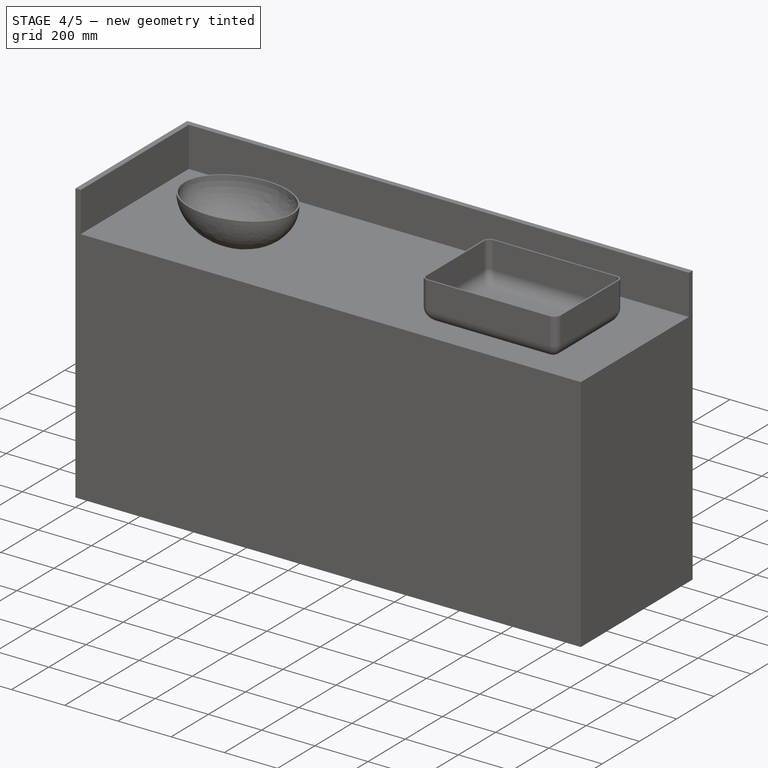
[diagram: stage 4 of 5 — iso view after this stage's code; geometry added in this stage tinted green]
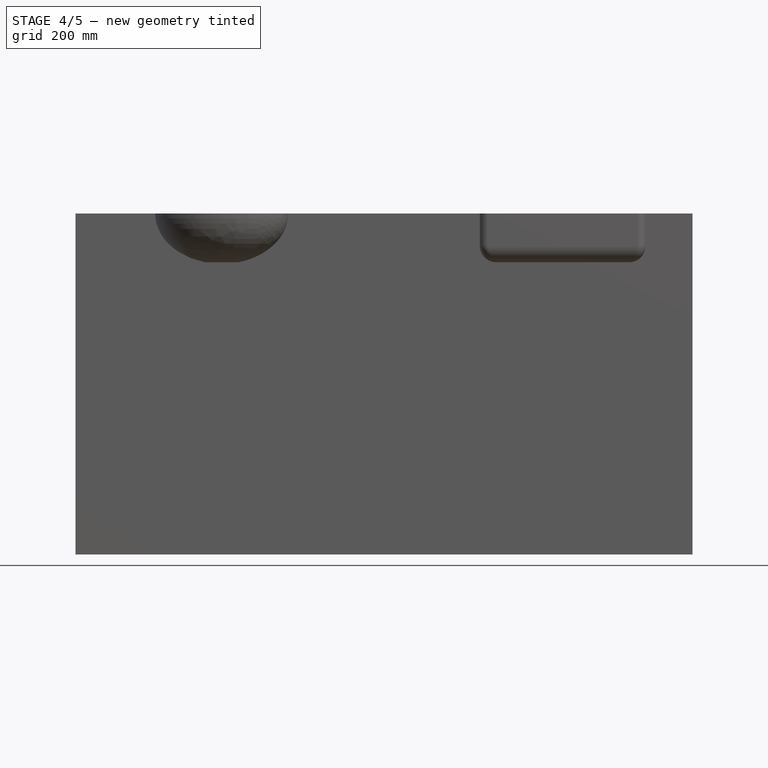
[diagram: stage 4 of 5 — front view after this stage's code; geometry added in this stage tinted green]
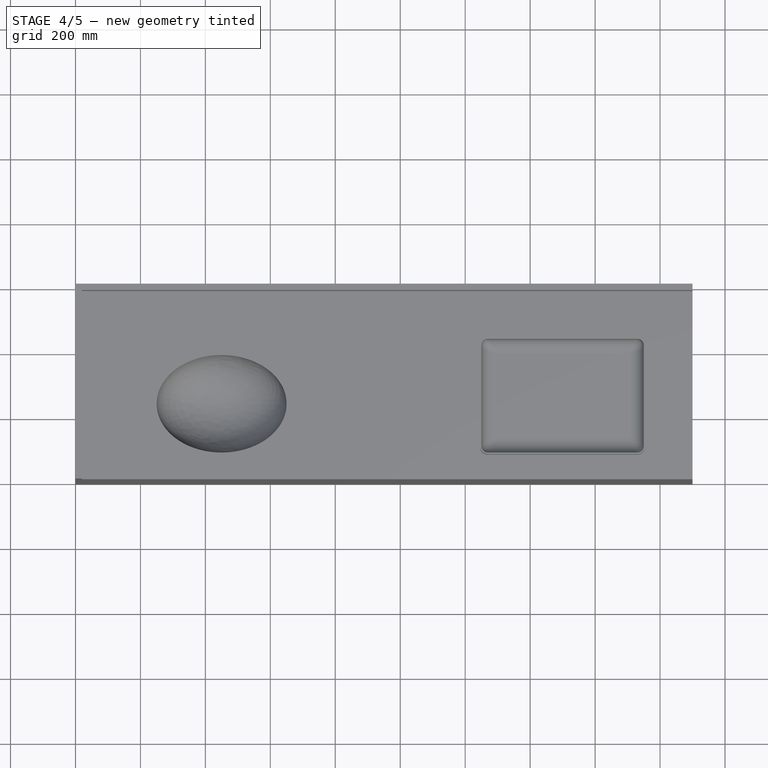
[diagram: stage 4 of 5 — top view after this stage's code; geometry added in this stage tinted green]
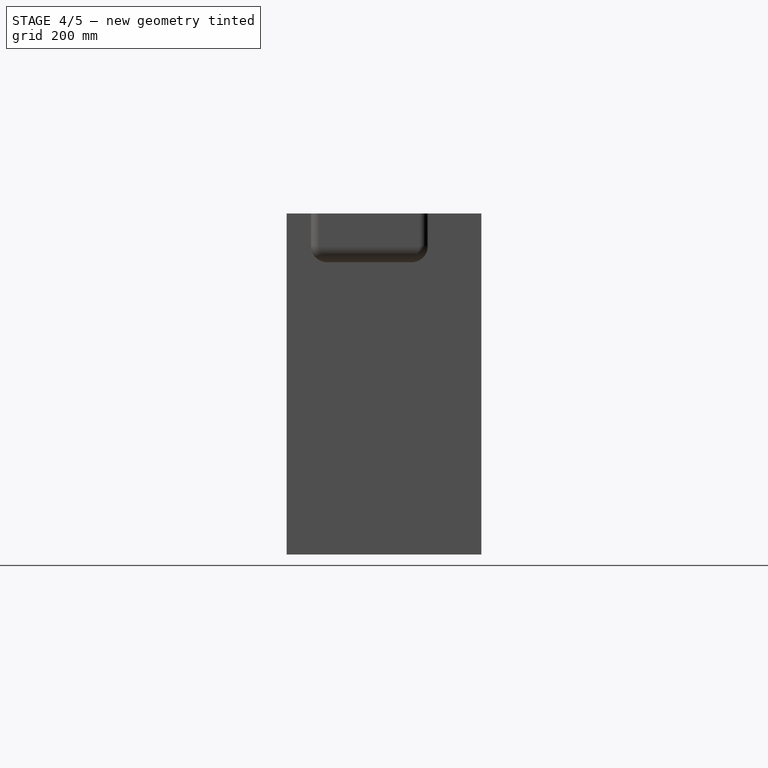
[diagram: stage 4 of 5 — right view after this stage's code; geometry added in this stage tinted green]
FEATURE [Sketcher::SketchObject] Sketch001  label="saia"
  FullyConstrained = true
  Placement = pos=(0,0,0) rot=(1,0,0;1.5708rad)
  expr: Constraints[10] = <<Tabela>>.altura - <<Tabela>>.saia
  expr: Constraints[9] = <<Tabela>>.comprimento - <<Tabela>>.saia
  sketch-geometry (4):
    g0: LineSegment StartX=0 StartY=0 StartZ=0 EndX=1850 EndY=0 EndZ=0
    g1: LineSegment StartX=1850 StartY=0 StartZ=0 EndX=1850 EndY=850 EndZ=0
    g2: LineSegment StartX=1850 StartY=850 StartZ=0 EndX=0 EndY=850 EndZ=0
    g3: LineSegment StartX=0 StartY=850 StartZ=0 EndX=0 EndY=0 EndZ=0
  constraints (11):
    c: Coincident(g0,g1)
    c: Coincident(g1,g2)
    c: Coincident(g2,g3)
    c: Coincident(g3,g0)
    c: Horizontal(g0)
    c: Horizontal(g2)
    c: Vertical(g1)
    c: Vertical(g3)
    c: Coincident(g0,g-1)
    c: DistanceX(g2,g2) = 1850
    c: DistanceY(g1,g1) = 850
FEATURE [Part::Extrusion] Extrude001  label="Saia"
  Base = -> Sketch001
  Dir = (0,-1,2e-16)
  DirMode = 2
  FaceMakerClass = Part::FaceMakerBullseye
  LengthFwd = 0
  LengthRev = 20
  Solid = true
  Symmetric = false
  expr: LengthRev = <<Tabela>>.espessura
FEATURE [Sketcher::SketchObject] Sketch002
  FullyConstrained = true
  Placement = pos=(0,0,0) rot=(1,0,0;1.5708rad)
  expr: Constraints[10] = <<Tabela>>.altura - <<Tabela>>.espessura
  expr: Constraints[9] = <<Tabela>>.comprimento - <<Tabela>>.espessura
  sketch-geometry (4):
    g0: LineSegment StartX=0 StartY=0 StartZ=0 EndX=1880 EndY=0 EndZ=0
    g1: LineSegment StartX=1880 StartY=0 StartZ=0 EndX=1880 EndY=880 EndZ=0
    g2: LineSegment StartX=1880 StartY=880 StartZ=0 EndX=0 EndY=880 EndZ=0
    g3: LineSegment StartX=0 StartY=880 StartZ=0 EndX=0 EndY=0 EndZ=0
  constraints (11):
    c: Coincident(g0,g1)
    c: Coincident(g1,g2)
    c: Coincident(g2,g3)
    c: Coincident(g3,g0)
    c: Horizontal(g0)
    c: Horizontal(g2)
    c: Vertical(g1)
    c: Vertical(g3)
    c: Coincident(g0,g-1)
    c: DistanceX(g2,g2) = 1880
    c: DistanceY(g1,g1) = 880
FEATURE [Part::Extrusion] Extrude002  label="Base "
  Base = -> Sketch002
  Dir = (0,-1,2e-16)
  DirMode = 2
  FaceMakerClass = Part::FaceMakerBullseye
  LengthFwd = 0
  LengthRev = 580
  Placement = pos=(0,20,0) rot=(0,0,1;0rad)
  Solid = true
  Symmetric = false
  expr: .Placement.Base.y = <<Tabela>>.espessura
  expr: LengthRev = <<Tabela>>.largura - <<Tabela>>.espessura
FEATURE [Part::MultiFuse] Fusion001  label="Pedras"
  Refine = true
  Shapes = -> [Extrude,Extrude004,Extrude005]
FEATURE [Sketcher::SketchObject] Sketch006
  FullyConstrained = true
  Placement = pos=(0,0,0) rot=(0.57735,0.57735,0.57735;2.0944rad)
  expr: Constraints[10] = <<Tabela>>.profundidade
  expr: Constraints[8] = <<Tabela>>.larguracuba
  expr: Constraints[9] = <<Tabela>>.fundo
  sketch-geometry (4):
    g0: LineSegment StartX=0 StartY=0 StartZ=0 EndX=300 EndY=0 EndZ=0
    g1: LineSegment StartX=0 StartY=0 StartZ=0 EndX=200 EndY=-100 EndZ=0
    g2: LineSegment StartX=200 StartY=-100 StartZ=0 EndX=300 EndY=-100 EndZ=0
    g3: LineSegment StartX=300 StartY=-100 StartZ=0 EndX=300 EndY=0 EndZ=0
  constraints (11):
    c: Coincident(g0,g-1)
    c: Horizontal(g0)
    c: Coincident(g1,g0)
    c: Coincident(g2,g1)
    c: Horizontal(g2)
    c: Coincident(g3,g2)
    c: Coincident(g3,g0)
    c: Vertical(g3)
    c: DistanceX(g0,g0) = 300
    c: DistanceX(g2,g2) = 100
    c: DistanceY(g3,g3) = 100
FEATURE [Sketcher::SketchObject] Sketch007
  FullyConstrained = true
  Placement = pos=(0,0,0) rot=(0.57735,0.57735,0.57735;2.0944rad)
  expr: Constraints[10] = <<Tabela>>.profundidade
  expr: Constraints[24] = <<Tabela>>.espessura
  expr: Constraints[25] = <<Tabela>>.espessura
  expr: Constraints[8] = <<Tabela>>.larguracuba
  expr: Constraints[9] = <<Tabela>>.fundo
  sketch-geometry (9):
    g0: LineSegment StartX=0 StartY=0 StartZ=0 EndX=300 EndY=0 EndZ=0
    g1: LineSegment StartX=0 StartY=0 StartZ=0 EndX=200 EndY=-100 EndZ=0
    g2: LineSegment StartX=200 StartY=-100 StartZ=0 EndX=300 EndY=-100 EndZ=0
    g3: LineSegment StartX=300 StartY=-100 StartZ=0 EndX=300 EndY=0 EndZ=0
    g4: LineSegment StartX=-40 StartY=0 StartZ=0 EndX=320 EndY=0 EndZ=0
    g5: LineSegment StartX=320 StartY=0 StartZ=0 EndX=320 EndY=-120 EndZ=0
    g6: LineSegment StartX=320 StartY=-120 StartZ=0 EndX=200 EndY=-120 EndZ=0
    g7: LineSegment StartX=200 StartY=-120 StartZ=0 EndX=-40 EndY=0 EndZ=0
    g8: LineSegment StartX=200 StartY=-100 StartZ=0 EndX=200 EndY=0 EndZ=0
  constraints (26):
    c: Coincident(g0,g-1)
    c: Horizontal(g0)
    c: Coincident(g1,g0)
    c: Coincident(g2,g1)
    c: Horizontal(g2)
    c: Coincident(g3,g2)
    c: Coincident(g3,g0)
    c: Vertical(g3)
    c: DistanceX(g0,g0) = 300
    c: DistanceX(g2,g2) = 100
    c: DistanceY(g3,g3) = 100
    c: Horizontal(g4)
    c: Coincident(g5,g4)
    c: Vertical(g5)
    c: Coincident(g6,g5)
    c: Horizontal(g6)
    c: Coincident(g7,g6)
    c: Coincident(g7,g4)
    c: Parallel(g7,g1)
    c: PointOnObject(g4,g0)
    c: Coincident(g8,g1)
    c: PointOnObject(g8,g4)
    c: Vertical(g8)
    c: PointOnObject(g6,g8)
    c: DistanceX(g2,g5) = 20
    c: DistanceY(g5,g2) = 20
FEATURE [Part::Extrusion] Extrude006
  Base = -> Sketch006
  Dir = (1,0,0)
  DirMode = 2
  FaceMakerClass = Part::FaceMakerBullseye
  LengthFwd = 400
  LengthRev = 0
  Solid = true
  Symmetric = false
  expr: LengthFwd = <<Tabela>>.comprimentocuba
FEATURE [Part::Extrusion] Extrude007
  Base = -> Sketch007
  Dir = (1,0,0)
  DirMode = 2
  FaceMakerClass = Part::FaceMakerBullseye
  LengthFwd = 440
  LengthRev = 0
  Placement = pos=(-20,0,0) rot=(0,0,1;0rad)
  Solid = true
  Symmetric = false
  expr: .Placement.Base.x = -<<Tabela>>.espessura
  expr: LengthFwd = <<Tabela>>.comprimentocuba + 2 * <<Tabela>>.espessura
FEATURE [Sketcher::SketchObject] Sketch003
  FullyConstrained = true
  expr: Constraints[10] = <<Tabela>>.larguracuba
  expr: Constraints[9] = <<Tabela>>.comprimentocuba
  sketch-geometry (4):
    g0: LineSegment StartX=0 StartY=0 StartZ=0 EndX=400 EndY=0 EndZ=0
    g1: LineSegment StartX=400 StartY=0 StartZ=0 EndX=400 EndY=300 EndZ=0
    g2: LineSegment StartX=400 StartY=300 StartZ=0 EndX=0 EndY=300 EndZ=0
    g3: LineSegment StartX=0 StartY=300 StartZ=0 EndX=0 EndY=0 EndZ=0
  constraints (11):
    c: Coincident(g0,g1)
    c: Coincident(g1,g2)
    c: Coincident(g2,g3)
    c: Coincident(g3,g0)
    c: Horizontal(g0)
    c: Horizontal(g2)
    c: Vertical(g1)
    c: Vertical(g3)
    c: Coincident(g0,g-1)
    c: DistanceX(g2,g2) = 400
    c: DistanceY(g1,g1) = 300
FEATURE [Part::Extrusion] Extrude003  label="Cuba"
  Base = -> Sketch003
  Dir = (0,0,1)
  DirMode = 2
  FaceMakerClass = Part::FaceMakerBullseye
  LengthFwd = 20
  LengthRev = 0
  Placement = pos=(266.66,80,880) rot=(0,0,1;0rad)
  Solid = true
  Symmetric = false
  expr: .Placement.Base.x = <<Tabela>>.afastamentolateral
  expr: .Placement.Base.y = <<Tabela>>.afastamentofrontal
  expr: .Placement.Base.z = <<Tabela>>.altura - <<Tabela>>.espessura
  expr: LengthFwd = <<Tabela>>.espessura
FEATURE [Sketcher::SketchObject] Sketch011  label="saia001"
  FullyConstrained = true
  Placement = pos=(0,0,0) rot=(1,0,0;1.5708rad)
  expr: Constraints[10] = <<Tabela>>.altura - <<Tabela>>.saia
  expr: Constraints[9] = <<Tabela>>.comprimento - 2 * <<Tabela>>.saia
  sketch-geometry (4):
    g0: LineSegment StartX=0 StartY=0 StartZ=0 EndX=1800 EndY=0 EndZ=0
    g1: LineSegment StartX=1800 StartY=0 StartZ=0 EndX=1800 EndY=850 EndZ=0
    g2: LineSegment StartX=1800 StartY=850 StartZ=0 EndX=0 EndY=850 EndZ=0
    g3: LineSegment StartX=0 StartY=850 StartZ=0 EndX=0 EndY=0 EndZ=0
  constraints (11):
    c: Coincident(g0,g1)
    c: Coincident(g1,g2)
    c: Coincident(g2,g3)
    c: Coincident(g3,g0)
    c: Horizontal(g0)
    c: Horizontal(g2)
    c: Vertical(g1)
    c: Vertical(g3)
    c: Coincident(g0,g-1)
    c: DistanceX(g2,g2) = 1800
    c: DistanceY(g1,g1) = 850
FEATURE [Part::Extrusion] Extrude015  label="cuba"
  Base = -> Sketch003
  Dir = (0,0,1)
  DirMode = 2
  FaceMakerClass = Part::FaceMakerBullseye
  LengthFwd = 20
  LengthRev = 0
  Placement = pos=(266.66,80,880) rot=(0,0,1;0rad)
  Solid = true
  Symmetric = false
  expr: .Placement.Base.x = <<Tabela>>.afastamentolateral
  expr: .Placement.Base.y = <<Tabela>>.afastamentofrontal
  expr: .Placement.Base.z = <<Tabela>>.altura - <<Tabela>>.espessura
  expr: LengthFwd = <<Tabela>>.espessura
FEATURE [Part::Extrusion] Extrude016  label="Base001"
  Base = -> Sketch
  Dir = (0,-1,2e-16)
  DirMode = 2
  FaceMakerClass = Part::FaceMakerBullseye
  LengthFwd = 0
  LengthRev = 600
  Solid = true
  Symmetric = false
  expr: LengthRev = <<Tabela>>.largura
FEATURE [Part::Extrusion] Extrude017  label="Roda mão 002"
  Base = -> Sketch004
  Dir = (0,-1,2e-16)
  DirMode = 2
  FaceMakerClass = Part::FaceMakerBullseye
  LengthFwd = 20
  LengthRev = 0
  Placement = pos=(0,600,900) rot=(0,0,1;0rad)
  Solid = true
  Symmetric = false
  expr: .Placement.Base.y = <<Tabela>>.largura
  expr: .Placement.Base.z = <<Tabela>>.altura
  expr: LengthFwd = <<Tabela>>.espessura
FEATURE [Part::MultiFuse] Fusion006  label="Pedras "
  Shapes = -> [Extrude016,Extrude017]
FEATURE [Part::Extrusion] Extrude018  label="Saia001"
  Base = -> Sketch011
  Dir = (0,-1,2e-16)
  DirMode = 2
  FaceMakerClass = Part::FaceMakerBullseye
  LengthFwd = 0
  LengthRev = 20
  Placement = pos=(50,0,0) rot=(0,0,1;0rad)
  Solid = true
  Symmetric = false
  expr: .Placement.Base.x = <<Tabela>>.saia
  expr: LengthRev = <<Tabela>>.espessura
FEATURE [Sketcher::SketchObject] Sketch012
  FullyConstrained = true
  Placement = pos=(0,0,0) rot=(1,0,0;1.5708rad)
  expr: Constraints[10] = <<Tabela>>.altura - <<Tabela>>.espessura
  expr: Constraints[9] = <<Tabela>>.comprimento - 2 * <<Tabela>>.espessura
  sketch-geometry (4):
    g0: LineSegment StartX=0 StartY=0 StartZ=0 EndX=1860 EndY=0 EndZ=0
    g1: LineSegment StartX=1860 StartY=0 StartZ=0 EndX=1860 EndY=880 EndZ=0
    g2: LineSegment StartX=1860 StartY=880 StartZ=0 EndX=0 EndY=880 EndZ=0
    g3: LineSegment StartX=0 StartY=880 StartZ=0 EndX=0 EndY=0 EndZ=0
  constraints (11):
    c: Coincident(g0,g1)
    c: Coincident(g1,g2)
    c: Coincident(g2,g3)
    c: Coincident(g3,g0)
    c: Horizontal(g0)
    c: Horizontal(g2)
    c: Vertical(g1)
    c: Vertical(g3)
    c: Coincident(g0,g-1)
    c: DistanceX(g2,g2) = 1860
    c: DistanceY(g1,g1) = 880
FEATURE [Part::Extrusion] Extrude019  label="Base 001"
  Base = -> Sketch012
  Dir = (0,-1,2e-16)
  DirMode = 2
  FaceMakerClass = Part::FaceMakerBullseye
  LengthFwd = 0
  LengthRev = 580
  Placement = pos=(20,20,0) rot=(0,0,1;0rad)
  Solid = true
  Symmetric = false
  expr: .Placement.Base.x = <<Tabela>>.espessura
  expr: .Placement.Base.y = <<Tabela>>.espessura
  expr: LengthRev = <<Tabela>>.largura - <<Tabela>>.espessura
FEATURE [Part::Cut] Cut006  label="Cuba 004"
  Base = -> Extrude007
  Placement = pos=(266.66,80,900) rot=(0,0,1;0rad)
  Tool = -> Extrude006
  expr: .Placement.Base.x = <<Tabela>>.afastamentolateral
  expr: .Placement.Base.y = <<Tabela>>.afastamentofrontal
  expr: .Placement.Base.z = <<Tabela>>.altura
FEATURE [Part::MultiFuse] Fusion012  label="Pedras002"
  Refine = true
  Shapes = -> [Extrude,Extrude004,Extrude005]
FEATURE [Part::FeaturePython] Array001  # Draft array (typed FeaturePython)
  AlwaysSyncPlacement = false
  Angle = 360
  ArrayType = 0
  Axis = (0,0,1)
  Base = -> Extrude003
  Center = (0,0,0)
  Count = 1
  ExpandArray = false
  Fuse = false
  IntervalAxis = (0,0,0)
  IntervalX = (666.66,0,0)
  IntervalY = (0,100,0)
  IntervalZ = (0,0,100)
  NumberCircles = 3
  NumberPolar = 5
  NumberX = 1
  NumberY = 1
  NumberZ = 1
  PlacementList = 1 placements: [(266.66,80,880)]
  RadialDistance = 50
  ScaleList = (1) [(1,1,1)]
  Symmetry = 1
  TangentialDistance = 25
  expr: .IntervalX.x = <<Tabela>>.entreeixos
  expr: NumberX = <<Tabela>>.numcubas
FEATURE [Part::MultiFuse] Fusion  label="Cortes"
  Shapes = -> [Array001,Extrude002,Extrude001]
FEATURE [Part::FeaturePython] Array002  # Draft array (typed FeaturePython)
  AlwaysSyncPlacement = false
  Angle = 360
  ArrayType = 0
  Axis = (0,0,1)
  Base = -> Cut006
  Center = (0,0,0)
  Count = 1
  ExpandArray = false
  Fuse = false
  IntervalAxis = (0,0,0)
  IntervalX = (666.66,0,0)
  IntervalY = (0,100,0)
  IntervalZ = (0,0,100)
  NumberCircles = 3
  NumberPolar = 5
  NumberX = 1
  NumberY = 1
  NumberZ = 1
  PlacementList = 1 placements: [(266.66,80,900)]
  RadialDistance = 50
  ScaleList = (1) [(1,1,1)]
  Symmetry = 1
  TangentialDistance = 25
  expr: .IntervalX.x = <<Tabela>>.entreeixos
  expr: NumberX = <<Tabela>>.numcubas
FEATURE [Part::FeaturePython] Array003  # Draft array (typed FeaturePython)
  AlwaysSyncPlacement = false
  Angle = 360
  ArrayType = 0
  Axis = (0,0,1)
  Base = -> Extrude015
  Center = (0,0,0)
  Count = 1
  ExpandArray = false
  Fuse = false
  IntervalAxis = (0,0,0)
  IntervalX = (666.66,0,0)
  IntervalY = (0,100,0)
  IntervalZ = (0,0,100)
  NumberCircles = 3
  NumberPolar = 5
  NumberX = 1
  NumberY = 1
  NumberZ = 1
  PlacementList = 1 placements: [(266.66,80,880)]
  RadialDistance = 50
  ScaleList = (1) [(1,1,1)]
  Symmetry = 1
  TangentialDistance = 25
  expr: .IntervalX.x = <<Tabela>>.entreeixos
  expr: NumberX = <<Tabela>>.numcubas
FEATURE [Part::MultiFuse] Fusion016
  Shapes = -> [Array003,Extrude019,Extrude018]
FEATURE [Part::Cut] Cut013
  Base = -> Fusion006
  Tool = -> Fusion016
FEATURE [Part::MultiFuse] Fusion017  label="Lavatório cuba esculpida 2 pé fechado"
  Refine = true
  Shapes = -> [Array002,Cut013]
FEATURE [Part::FeaturePython] Array004  # Draft array (typed FeaturePython)
  AlwaysSyncPlacement = false
  Angle = 360
  ArrayType = 0
  Axis = (0,0,1)
  Base = -> Cut012
  Center = (0,0,0)
  Count = 1
  ExpandArray = false
  Fuse = false
  IntervalAxis = (0,0,0)
  IntervalX = (666.66,0,0)
  IntervalY = (0,100,0)
  IntervalZ = (0,0,100)
  NumberCircles = 3
  NumberPolar = 5
  NumberX = 1
  NumberY = 1
  NumberZ = 1
  PlacementList = 1 placements: [(450,230,880)]
  RadialDistance = 50
  ScaleList = (1) [(1,1,1)]
  Symmetry = 1
  TangentialDistance = 25
  expr: .IntervalX.x = <<Tabela>>.entreeixos
  expr: NumberX = <<Tabela>>.numcubas
FEATURE [Part::Cut] Cut014
  Base = -> Fusion012
  Tool = -> Fusion018
FEATURE [Part::MultiFuse] Fusion019  label="Lavatório cuba embutida redonda 1 pé fechado"
  Shapes = -> [Array004,Cut014]
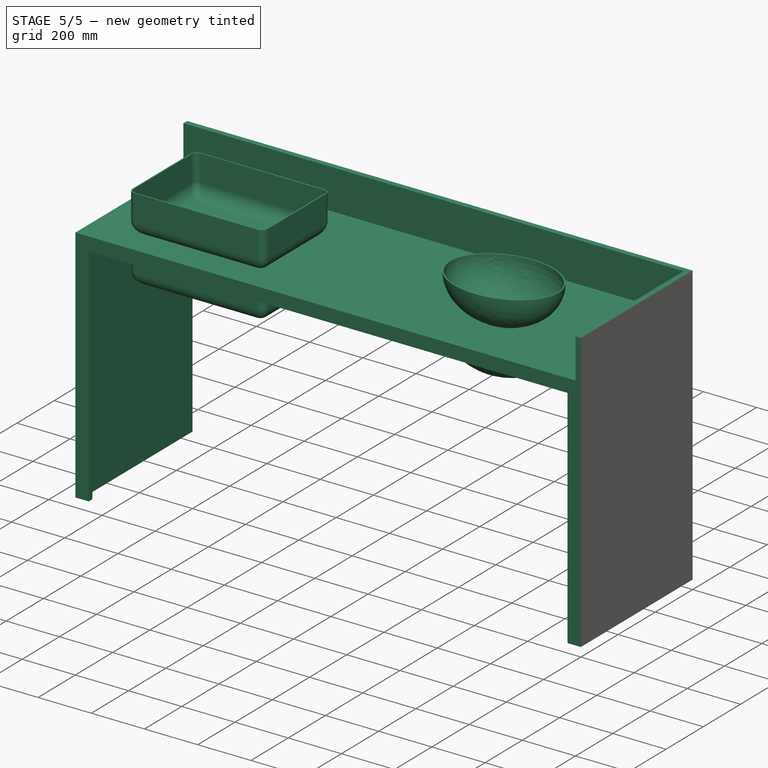
[diagram: stage 5 of 5 — iso view after this stage's code; geometry added in this stage tinted green]
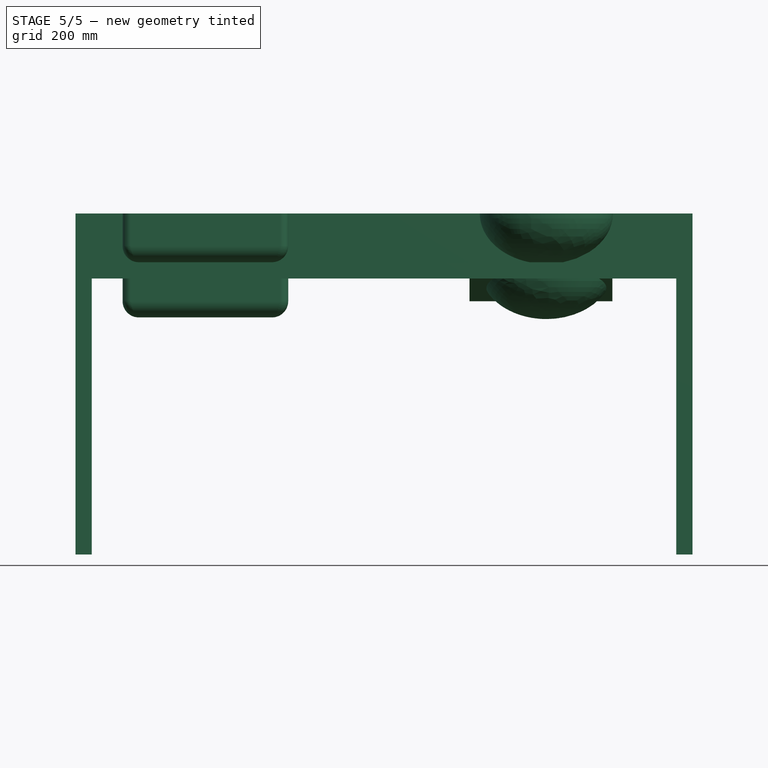
[diagram: stage 5 of 5 — front view after this stage's code; geometry added in this stage tinted green]
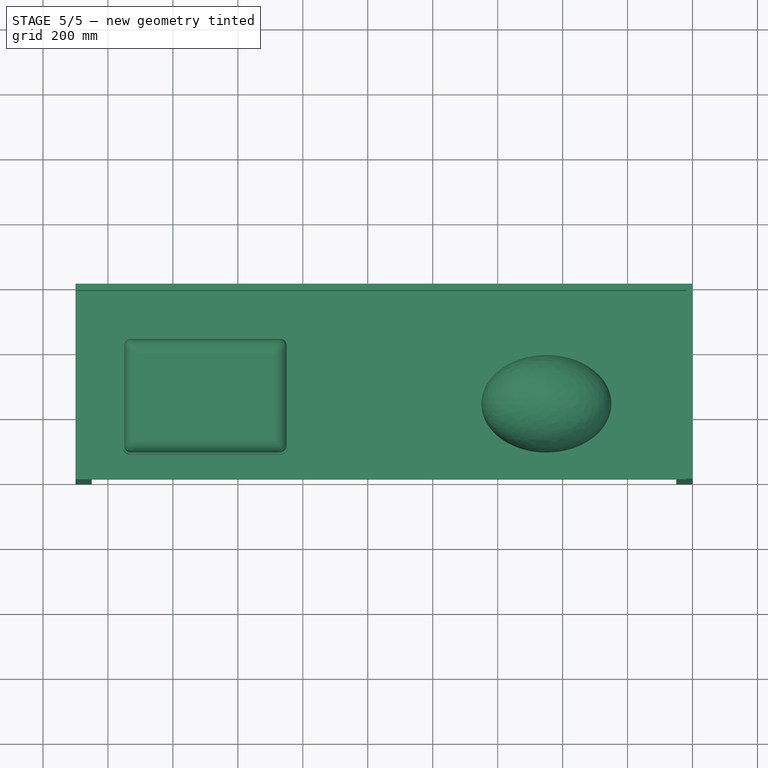
[diagram: stage 5 of 5 — top view after this stage's code; geometry added in this stage tinted green]
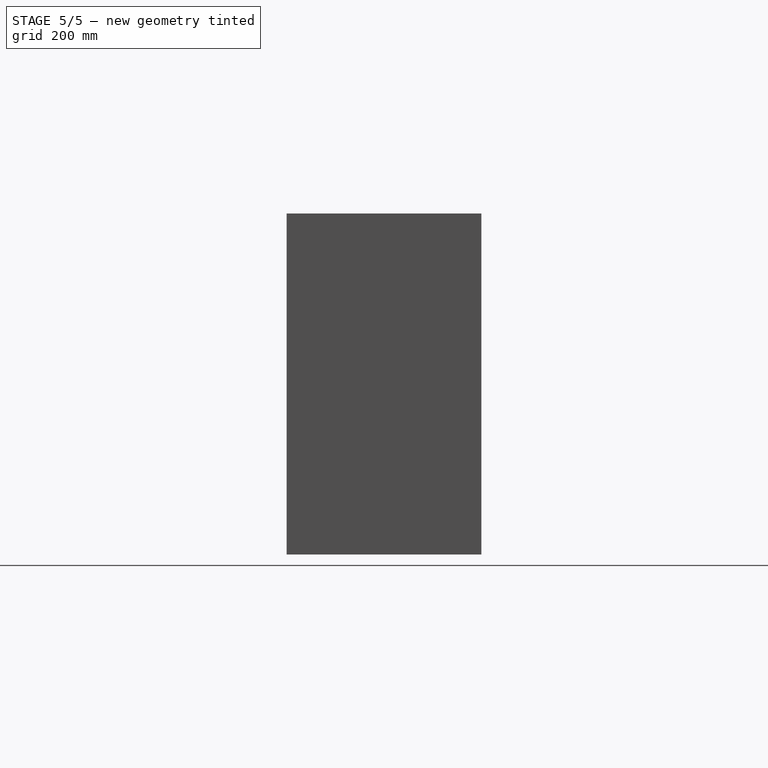
[diagram: stage 5 of 5 — right view after this stage's code; geometry added in this stage tinted green]
FEATURE [Part::Cut] Cut001  label="Cuba 1"
  Base = -> Extrude007
  Placement = pos=(266.66,80,900) rot=(0,0,1;0rad)
  Tool = -> Extrude006
  expr: .Placement.Base.x = <<Tabela>>.afastamentolateral
  expr: .Placement.Base.y = <<Tabela>>.afastamentofrontal
  expr: .Placement.Base.z = <<Tabela>>.altura
FEATURE [Part::FeaturePython] Array  # Draft array (typed FeaturePython)
  AlwaysSyncPlacement = false
  Angle = 360
  ArrayType = 0
  Axis = (0,0,1)
  Base = -> Cut001
  Center = (0,0,0)
  Count = 1
  ExpandArray = false
  Fuse = false
  IntervalAxis = (0,0,0)
  IntervalX = (666.66,0,0)
  IntervalY = (0,100,0)
  IntervalZ = (0,0,100)
  NumberCircles = 3
  NumberPolar = 5
  NumberX = 1
  NumberY = 1
  NumberZ = 1
  PlacementList = 1 placements: [(266.66,80,900)]
  RadialDistance = 50
  ScaleList = (1) [(1,1,1)]
  Symmetry = 1
  TangentialDistance = 25
  expr: .IntervalX.x = <<Tabela>>.entreeixos
  expr: NumberX = <<Tabela>>.numcubas
FEATURE [Part::Cut] Cut
  Base = -> Fusion001
  Tool = -> Fusion
FEATURE [Part::MultiFuse] Fusion015  label="lavatório cuba esculpida 1 pé fechado"
  Refine = true
  Shapes = -> [Array,Cut]
FEATURE [App::FeaturePython] Section  label="Plano vista superior"  # WARN: FeaturePython — macro-defined, semantics opaque (R4)
  Clip = false
  Depth = 0
  Objects = -> [Fusion015,Fusion017,Fusion019,Fusion023,Fusion026,Fusion029,Fusion032,Fusion035,Fusion038,Fusion041]
  OnlySolids = true
  Placement = pos=(800,230.766,2000) rot=(0,0,1;0rad)
  UseMaterialColorForFill = false
FEATURE [App::FeaturePython] Section001  label="Plano vista frontal"  # WARN: FeaturePython — macro-defined, semantics opaque (R4)
  Clip = false
  Depth = 0
  Objects = -> [Fusion015,Fusion017,Fusion019,Fusion023,Fusion026,Fusion029,Fusion032,Fusion035,Fusion038,Fusion041]
  OnlySolids = true
  Placement = pos=(800,-1000,527.5) rot=(1,0,0;1.5708rad)
  UseMaterialColorForFill = false
FEATURE [App::FeaturePython] Section002  label="Plano vista Lateral"  # WARN: FeaturePython — macro-defined, semantics opaque (R4)
  Clip = false
  Depth = 0
  Objects = -> [Fusion015,Fusion017,Fusion019,Fusion023,Fusion026,Fusion029,Fusion032,Fusion035,Fusion038,Fusion041]
  OnlySolids = true
  Placement = pos=(2400,230.766,527.5) rot=(0,1,0;1.5708rad)
  UseMaterialColorForFill = false
  expr: .Placement.Base.x = <<Tabela>>.comprimento + 500 mm
FEATURE [App::FeaturePython] Section003  label="Seção corte AA"  # WARN: FeaturePython — macro-defined, semantics opaque (R4)
  Clip = false
  Depth = 0
  Objects = -> [Fusion015,Fusion017,Fusion019,Fusion023,Fusion026,Fusion029,Fusion032,Fusion035,Fusion038,Fusion041]
  OnlySolids = true
  Placement = pos=(366.66,230.766,527.5) rot=(0,1,0;1.5708rad)
  UseMaterialColorForFill = false
  expr: .Placement.Base.x = <<Tabela>>.afastamentolateral + 100 mm
FEATURE [App::DocumentObjectGroup] Group001  label="Seções"
  Group = -> [Section,Section001,Section002,Section003]
FEATURE [Part::Part2DObjectPython] Shape2DView  label="Vista superior"  # Draft 2D object (typed FeaturePython)
  AutoUpdate = true
  Base = -> Section
  Clip = false
  FuseArch = false
  HiddenLines = false
  InPlace = true
  OnlySolids = false
  Placement = pos=(6822.09,4385.38,0) rot=(0,0,1;0rad)
  Projection = (0.411062,-0.661683,0.62706)
  ProjectionMode = 0
  SegmentLength = 0.05
  Tessellation = false
  VisibleOnly = true
FEATURE [Part::Part2DObjectPython] Shape2DView001  label="Vista frontal"  # Draft 2D object (typed FeaturePython)
  AutoUpdate = true
  Base = -> Section001
  Clip = false
  FuseArch = false
  HiddenLines = false
  InPlace = true
  OnlySolids = false
  Placement = pos=(6822.09,2802.27,0) rot=(0,0,1;3.14159rad)
  Projection = (0.411062,-0.661683,0.62706)
  ProjectionMode = 0
  SegmentLength = 0.05
  Tessellation = false
  VisibleOnly = true
FEATURE [Part::Part2DObjectPython] Shape2DView002  label="Vista lateral"  # Draft 2D object (typed FeaturePython)
  AutoUpdate = true
  Base = -> Section002
  Clip = false
  FuseArch = false
  HiddenLines = false
  InPlace = true
  OnlySolids = false
  Placement = pos=(5218.67,3895.4,0) rot=(0,0,1;0rad)
  Projection = (0.411062,-0.661683,0.62706)
  ProjectionMode = 0
  SegmentLength = 0.05
  Tessellation = false
  VisibleOnly = true
FEATURE [Part::Part2DObjectPython] Shape2DView003  label="Corte AA"  # Draft 2D object (typed FeaturePython)
  AutoUpdate = true
  Base = -> Section003
  Clip = false
  FuseArch = false
  HiddenLines = false
  InPlace = true
  OnlySolids = false
  Placement = pos=(5218.67,2025.03,0) rot=(0,0,1;1.5708rad)
  Projection = (0.411062,-0.661683,0.62706)
  ProjectionMode = 0
  SegmentLength = 0.05
  Tessellation = false
  VisibleOnly = true
FEATURE [Part::FeaturePython] Clone002  label="lavatório cuba esculpida 1 pé fechado001"  # Draft clone (typed FeaturePython)
  AttacherType = Attacher::AttachEngine3D
  Fuse = false
  Objects = -> [Fusion015]
  Scale = (1,1,1)
FEATURE [Part::FeaturePython] Clone003  label="Lavatório cuba esculpida 2 pé fechado001"  # Draft clone (typed FeaturePython)
  AttacherType = Attacher::AttachEngine3D
  Fuse = false
  Objects = -> [Fusion017]
  Scale = (1,1,1)
FEATURE [Part::FeaturePython] Clone004  label="Lavatório cuba embutida redonda 1 pé fechado001"  # Draft clone (typed FeaturePython)
  AttacherType = Attacher::AttachEngine3D
  Fuse = false
  Objects = -> [Fusion019]
  Scale = (1,1,1)
FEATURE [Part::FeaturePython] Clone005  label="Lavatório cuba embutida redonda  2 pé fechado001"  # Draft clone (typed FeaturePython)
  AttacherType = Attacher::AttachEngine3D
  Fuse = false
  Objects = -> [Fusion023]
  Scale = (1,1,1)
FEATURE [Part::FeaturePython] Clone006  label="Lavatório Cuba sobrepor redonda 1 pé fechado001"  # Draft clone (typed FeaturePython)
  AttacherType = Attacher::AttachEngine3D
  Fuse = false
  Objects = -> [Fusion026]
  Scale = (1,1,1)
FEATURE [Part::FeaturePython] Clone007  label="Lavatório Cuba sobrepor redonda 2 pé fechado001"  # Draft clone (typed FeaturePython)
  AttacherType = Attacher::AttachEngine3D
  Fuse = false
  Objects = -> [Fusion029]
  Scale = (1,1,1)
FEATURE [Part::FeaturePython] Clone008  label="Pia cuba embutir retangular 1 pé fechado001"  # Draft clone (typed FeaturePython)
  AttacherType = Attacher::AttachEngine3D
  Fuse = false
  Objects = -> [Fusion032]
  Scale = (1,1,1)
FEATURE [Part::FeaturePython] Clone009  label="Pia cuba embutir retangular 2 pé fechado001"  # Draft clone (typed FeaturePython)
  AttacherType = Attacher::AttachEngine3D
  Fuse = false
  Objects = -> [Fusion035]
  Scale = (1,1,1)
FEATURE [Part::FeaturePython] Clone010  label="Pia cuba sobrepor retangular 1 pé fechado001"  # Draft clone (typed FeaturePython)
  AttacherType = Attacher::AttachEngine3D
  Fuse = false
  Objects = -> [Fusion038]
  Scale = (1,1,1)
FEATURE [Part::FeaturePython] Clone011  label="Pia cuba sobrepor retangular 2 pé fechado001"  # Draft clone (typed FeaturePython)
  AttacherType = Attacher::AttachEngine3D
  Fuse = false
  Objects = -> [Fusion041]
  Scale = (1,1,1)
FEATURE [Part::Mirroring] Mirror  label="lavatório cuba esculpida 1 pé fechado001 (espelhado)"
  Base = (-9.2e-15,3.33e-14,0)
  Normal = (1,0,0)
  Source = -> Clone002
FEATURE [Part::Mirroring] Mirror001  label="Lavatório cuba esculpida 2 pé fechado001 (espelhado)"
  Base = (-9.2e-15,3.33e-14,0)
  Normal = (1,0,0)
  Source = -> Clone003
FEATURE [Part::Mirroring] Mirror002  label="Lavatório cuba embutida redonda 1 pé fechado001 (espelhado)"
  Base = (-9.2e-15,3.33e-14,0)
  Normal = (1,0,0)
  Source = -> Clone004
FEATURE [Part::Mirroring] Mirror003  label="Lavatório cuba embutida redonda  2 pé fechado001 (espelhado)"
  Base = (-9.2e-15,3.33e-14,0)
  Normal = (1,0,0)
  Source = -> Clone005
FEATURE [Part::Mirroring] Mirror004  label="Lavatório Cuba sobrepor redonda 1 pé fechado001 (espelhado)"
  Base = (-9.2e-15,3.33e-14,0)
  Normal = (1,0,0)
  Source = -> Clone006
FEATURE [Part::Mirroring] Mirror005  label="Lavatório Cuba sobrepor redonda 2 pé fechado001 (espelhado)"
  Base = (-9.2e-15,3.33e-14,0)
  Normal = (1,0,0)
  Source = -> Clone007
FEATURE [Part::Mirroring] Mirror006  label="Pia cuba embutir retangular 1 pé fechado001 (espelhado)"
  Base = (-9.2e-15,3.33e-14,0)
  Normal = (1,0,0)
  Source = -> Clone008
FEATURE [Part::Mirroring] Mirror007  label="Pia cuba embutir retangular 2 pé fechado001 (espelhado)"
  Base = (-9.2e-15,3.33e-14,0)
  Normal = (1,0,0)
  Source = -> Clone009
FEATURE [Part::Mirroring] Mirror008  label="Pia cuba sobrepor retangular 1 pé fechado001 (espelhado)"
  Base = (-9.2e-15,3.33e-14,0)
  Normal = (1,0,0)
  Source = -> Clone010
FEATURE [Part::Mirroring] Mirror009  label="Pia cuba sobrepor retangular 2 pé fechado001 (espelhado)"
  Base = (9.15527e-05,0,0)
  Normal = (1,0,0)
  Source = -> Clone011
FEATURE [App::DocumentObjectGroup] Group003  label="Modelos espelhados001"
  Group = -> [Mirror,Mirror001,Mirror002,Mirror003,Mirror004,Mirror005,Mirror006,Mirror007,Mirror008,Mirror009]
FEATURE [App::DocumentObjectGroup] Group004  label="Modelos Principais"
  Group = -> [Fusion015,Fusion017,Fusion019,Fusion023,Fusion026,Fusion029,Fusion032,Fusion035,Fusion038,Fusion041]
FEATURE [App::DocumentObjectGroup] Group  label="Modelos 3D"
  Group = -> [Group004,Group003]
FEATURE [App::DocumentObjectGroup] Group005  label="Documentação principal"
  Group = -> [Shape2DView,Shape2DView001,Shape2DView002,Shape2DView003]
FEATURE [Part::Part2DObjectPython] Clone2D  label="Vista superior (2D)"  # Draft 2D object (typed FeaturePython)
  Fuse = false
  Objects = -> [Shape2DView]
  Placement = pos=(6822.09,4385.38,0) rot=(0,0,1;0rad)
  Scale = (1,1,1)
FEATURE [Part::Part2DObjectPython] Clone2D001  label="Vista frontal (2D)"  # Draft 2D object (typed FeaturePython)
  Fuse = false
  Objects = -> [Shape2DView001]
  Placement = pos=(6822.09,2802.27,0) rot=(0,0,1;3.14159rad)
  Scale = (1,1,1)
FEATURE [Part::Part2DObjectPython] Clone2D002  label="Vista lateral (2D)"  # Draft 2D object (typed FeaturePython)
  Fuse = false
  Objects = -> [Shape2DView002]
  Placement = pos=(5218.67,3895.4,0) rot=(0,0,1;0rad)
  Scale = (1,1,1)
FEATURE [Part::Part2DObjectPython] Clone2D003  label="Corte AA (2D)"  # Draft 2D object (typed FeaturePython)
  Fuse = false
  Objects = -> [Shape2DView003]
  Placement = pos=(5218.67,2025.03,0) rot=(0,0,1;1.5708rad)
  Scale = (1,1,1)
FEATURE [Part::Mirroring] Mirror010  label="Vista superior (2D) (espelhado)"
  Base = (6322.92,2789.41,0)
  Normal = (1,0,0)
  Source = -> Clone2D
FEATURE [Part::Mirroring] Mirror011  label="Vista frontal (2D) (espelhado)"
  Base = (6322.92,2789.41,0)
  Normal = (1,0,0)
  Source = -> Clone2D001
FEATURE [Part::Mirroring] Mirror012  label="Vista lateral (2D) (espelhado)"
  Base = (6322.92,2789.41,0)
  Normal = (1,0,0)
  Source = -> Clone2D002
FEATURE [Part::Mirroring] Mirror013  label="Corte AA (2D) (espelhado)"
  Base = (6322.92,2789.41,0)
  Normal = (1,0,0)
  Source = -> Clone2D003
FEATURE [App::DocumentObjectGroup] Group006  label="Documentação espelhada"
  Group = -> [Mirror010,Mirror011,Mirror012,Mirror013]
FEATURE [App::DocumentObjectGroup] Group002  label="Documentação 2D"
  Group = -> [Group005,Group006]
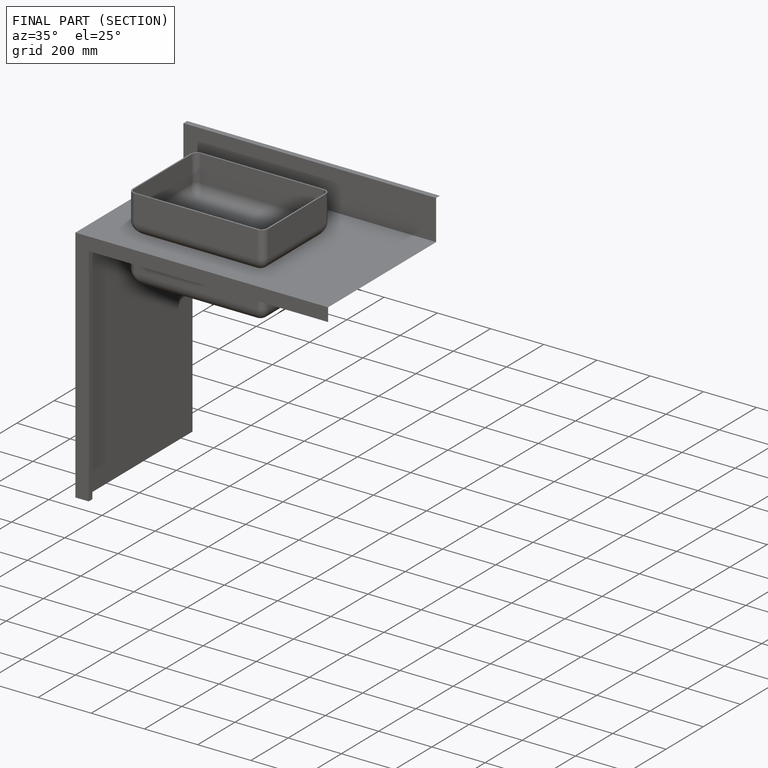
[diagram: finished part — half-section view (interior)]
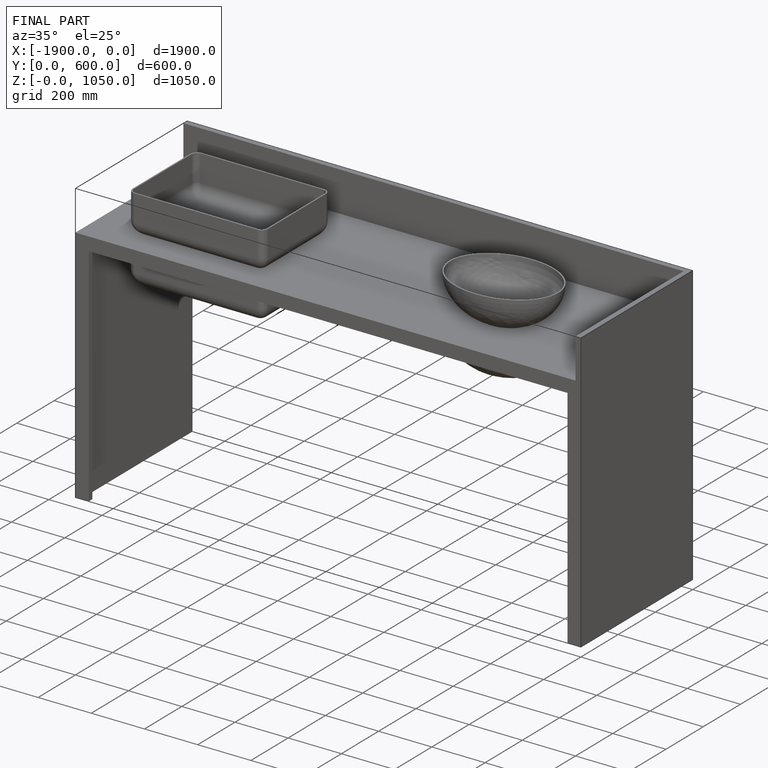
[diagram: finished part — iso view with bounding-box wireframe]
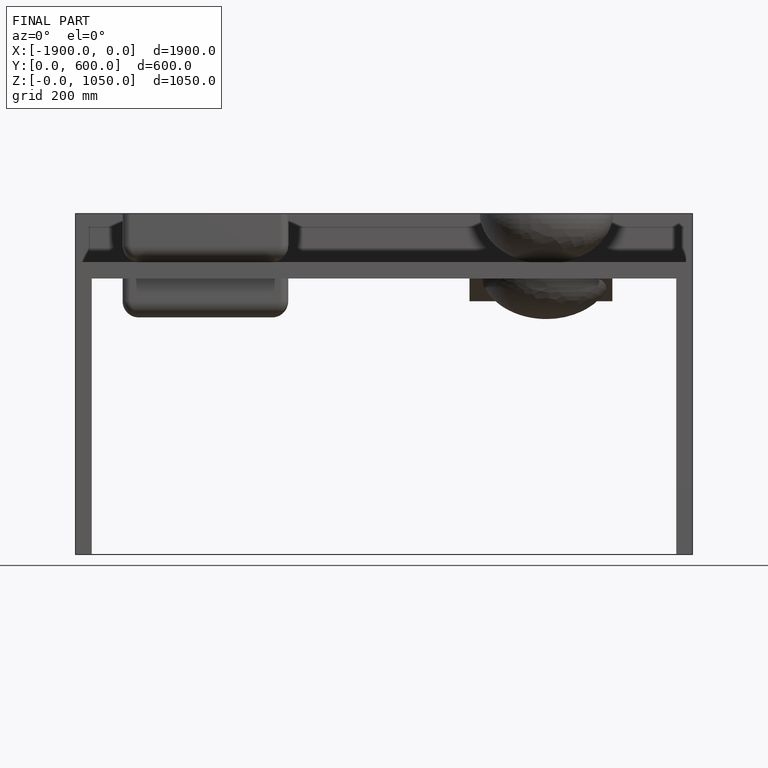
[diagram: finished part — front view with bounding-box wireframe]
